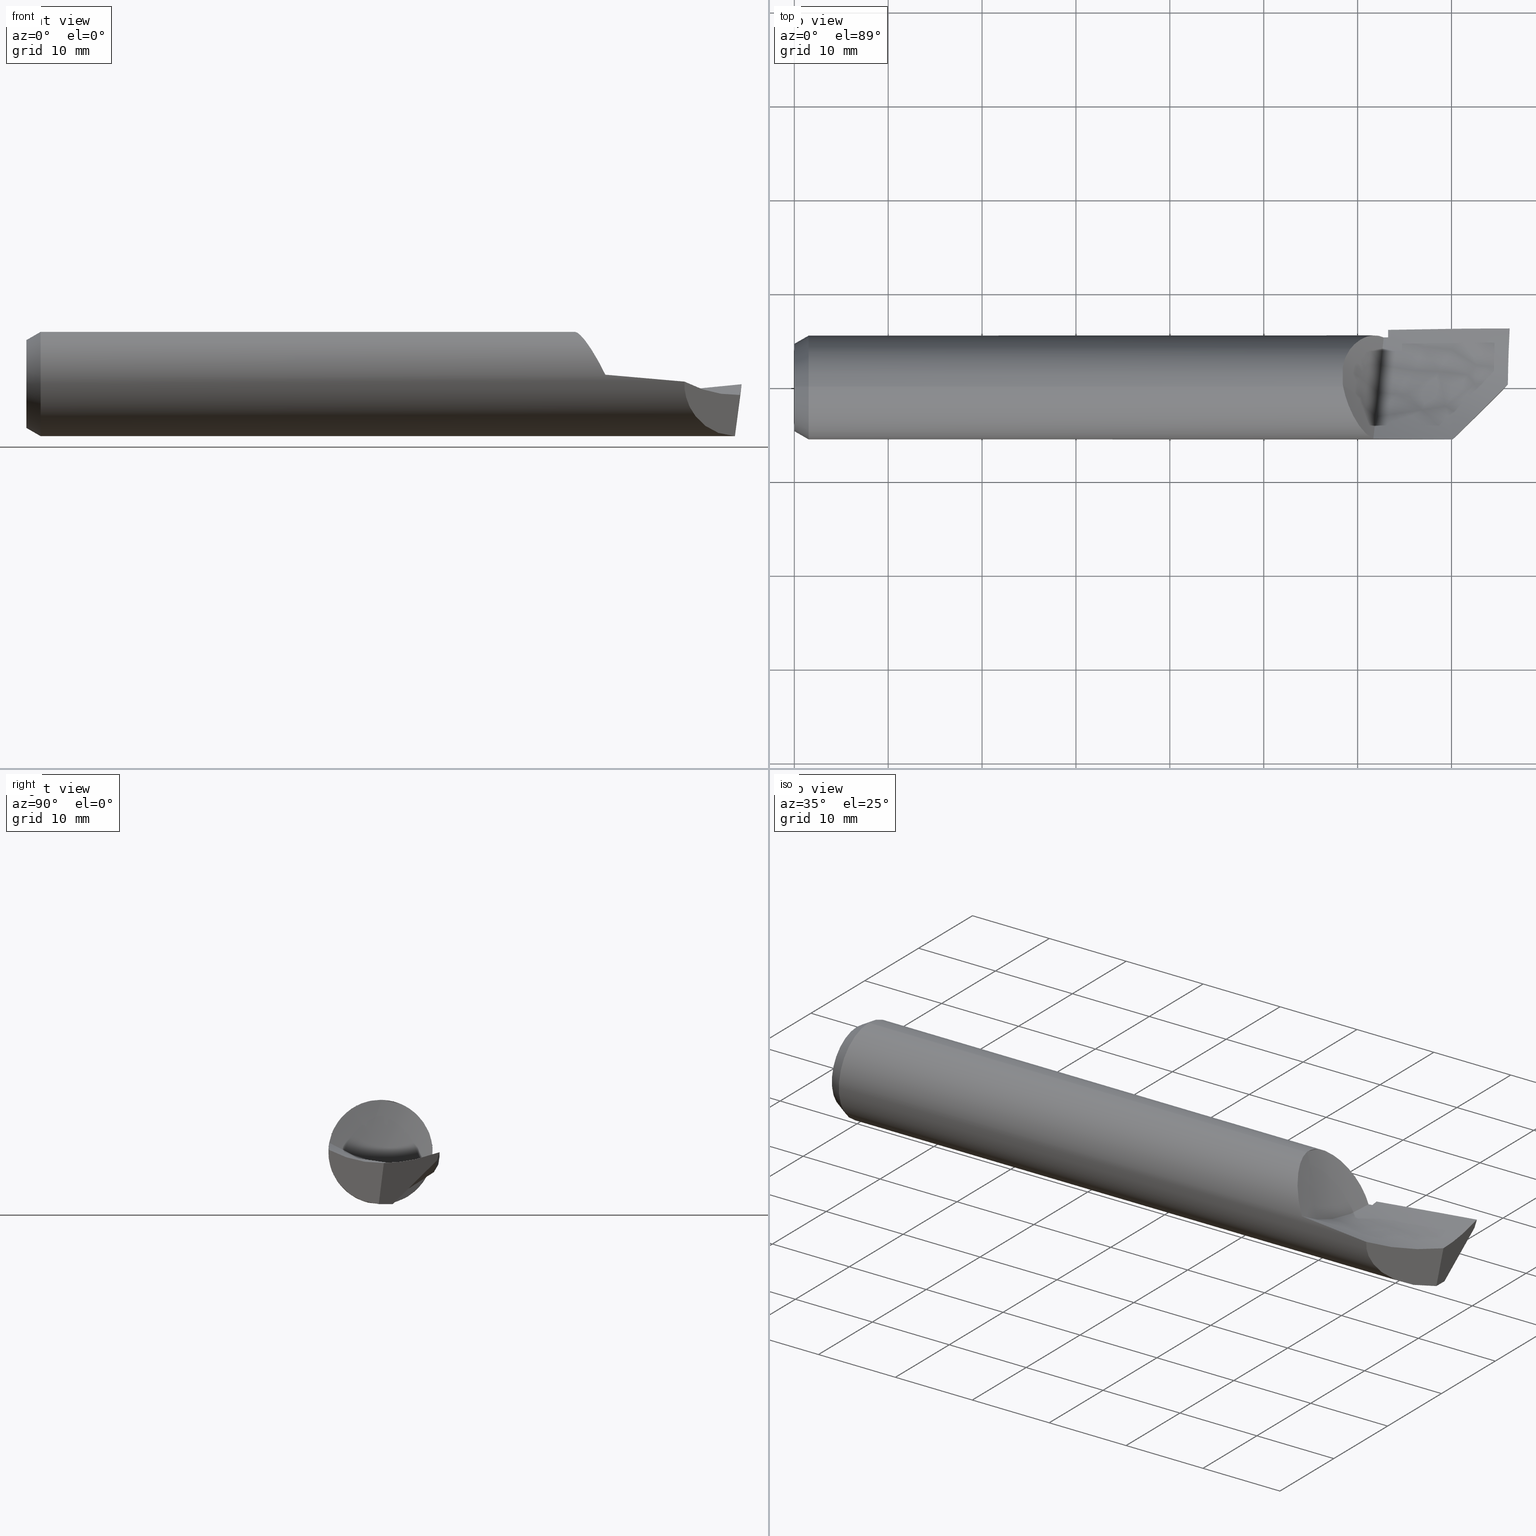
[diagram: canonical four-view strip — front | top / right | iso, engineering-drawing reading convention]
A machine part, canonical four-view strip (front | top / right | iso — engineering-drawing reading convention). The complete STEP part file that produces these views, byte-faithful:
ISO-10303-21;
HEADER;
FILE_DESCRIPTION (( 'STEP AP203' ),
    '1' );
FILE_NAME ('215778-HB480.STEP',
    '2024-08-09T22:11:51',
    ( '' ),
    ( '' ),
    'SwSTEP 2.0',
    'SolidWorks 2024',
    '' );
FILE_SCHEMA (( 'CONFIG_CONTROL_DESIGN' ));
ENDSEC;

DATA;
#1 = ORIENTED_EDGE ( 'NONE', *, *, #314, .T. ) ;
#2 = UNCERTAINTY_MEASURE_WITH_UNIT (LENGTH_MEASURE( 1.000000000000000082E-05 ), #379, 'distance_accuracy_value', 'NONE');
#3 = DIRECTION ( 'NONE',  ( 1.000000000000000000, 0.000000000000000000, 0.000000000000000000 ) ) ;
#4 = CARTESIAN_POINT ( 'NONE',  ( 2.453529265273477922, 0.02632038727176034057, -0.05321014791944891908 ) ) ;
#5 = VERTEX_POINT ( 'NONE', #477 ) ;
#6 = CARTESIAN_POINT ( 'NONE',  ( 2.375000000000001776, 0.2195062469289532914, -0.09505118791255254274 ) ) ;
#7 = CARTESIAN_POINT ( 'NONE',  ( 2.926130615619848552, 0.2477060359061865613, -0.008186851868489259873 ) ) ;
#8 = AXIS2_PLACEMENT_3D ( 'NONE', #275, #504, #166 ) ;
#9 = VERTEX_POINT ( 'NONE', #710 ) ;
#10 = CARTESIAN_POINT ( 'NONE',  ( 3.000000000000000444, 0.1068138953506696243, -0.07014347580852546560 ) ) ;
#11 = CARTESIAN_POINT ( 'NONE',  ( 2.397833416469516976, 0.2114095307937698398, 0.05580185651004447578 ) ) ;
#12 = ORIENTED_EDGE ( 'NONE', *, *, #672, .F. ) ;
#13 = CARTESIAN_POINT ( 'NONE',  ( 3.000000000000000444, -0.1068138953506696520, -0.07014347580852543784 ) ) ;
#14 = CARTESIAN_POINT ( 'NONE',  ( 2.952458880642425676, -0.02590525459746200604, -0.04690927801593595264 ) ) ;
#15 = VERTEX_POINT ( 'NONE', #84 ) ;
#16 = DIRECTION ( 'NONE',  ( 1.000000000000000000, 0.000000000000000000, -0.000000000000000000 ) ) ;
#17 = CARTESIAN_POINT ( 'NONE',  ( 2.809895244831540850, 0.2472116736001756243, -0.01975824981623042556 ) ) ;
#18 = ORIENTED_EDGE ( 'NONE', *, *, #180, .F. ) ;
#19 = CC_DESIGN_PERSON_AND_ORGANIZATION_ASSIGNMENT ( #489, #330, ( #146 ) ) ;
#20 = DIRECTION ( 'NONE',  ( -0.008726535498366258525, -0.9999619230641711987, 0.000000000000000000 ) ) ;
#21 = DIRECTION ( 'NONE',  ( 0.000000000000000000, 0.000000000000000000, 1.000000000000000000 ) ) ;
#22 = ORIENTED_EDGE ( 'NONE', *, *, #116, .T. ) ;
#23 = CARTESIAN_POINT ( 'NONE',  ( 0.000000000000000000, 0.000000000000000000, 0.000000000000000000 ) ) ;
#24 = EDGE_CURVE ( 'NONE', #172, #545, #693, .T. ) ;
#25 = CARTESIAN_POINT ( 'NONE',  ( 2.759944547215722022, -0.2184195880241632803, 0.01003524127037984555 ) ) ;
#26 = VERTEX_POINT ( 'NONE', #544 ) ;
#27 = CARTESIAN_POINT ( 'NONE',  ( 1.750000000000003109, 0.1874256952490743755, -0.1486247944483796157 ) ) ;
#28 = CARTESIAN_POINT ( 'NONE',  ( 2.300000000000000711, -0.09244828656994345806, 0.2677915732775292823 ) ) ;
#29 = CARTESIAN_POINT ( 'NONE',  ( 2.333018530376162136, -0.09912489433539911632, 0.1953142997923079105 ) ) ;
#30 = B_SPLINE_CURVE_WITH_KNOTS ( 'NONE', 3,
 ( #405, #529, #416, #184 ),
 .UNSPECIFIED., .F., .F.,
 ( 4, 4 ),
 ( 6.281806324945532255E-05, 0.006714991020779010472 ),
 .UNSPECIFIED. ) ;
#31 = CARTESIAN_POINT ( 'NONE',  ( 0.05999999999999999778, 0.000000000000000000, -0.2186499999999999555 ) ) ;
#32 = CARTESIAN_POINT ( 'NONE',  ( 2.404165058258995735, -0.2022209992731614780, 0.08673448802873333363 ) ) ;
#33 = CYLINDRICAL_SURFACE ( 'NONE', #42, 0.2186499999999999555 ) ;
#34 = B_SPLINE_CURVE_WITH_KNOTS ( 'NONE', 3,
 ( #559, #496, #345, #736 ),
 .UNSPECIFIED., .F., .F.,
 ( 4, 4 ),
 ( 0.0003823762464701765972, 0.01264710855387443829 ),
 .UNSPECIFIED. ) ;
#35 = SECURITY_CLASSIFICATION_LEVEL ( 'unclassified' ) ;
#36 = CARTESIAN_POINT ( 'NONE',  ( 2.323214188873262032, -0.07528118465658968639, 0.2052819717783619657 ) ) ;
#37 = LINE ( 'NONE', #31, #338 ) ;
#38 =( BOUNDED_CURVE ( )  B_SPLINE_CURVE ( 2, ( #173, #64, #438 ),
 .UNSPECIFIED., .F., .T. ) 
 B_SPLINE_CURVE_WITH_KNOTS ( ( 3, 3 ),
 ( 0.4075927071583006489, 0.4196108242066911576 ),
 .UNSPECIFIED. ) 
 CURVE ( )  GEOMETRIC_REPRESENTATION_ITEM ( )  RATIONAL_B_SPLINE_CURVE ( ( 0.9974221972044268192, 0.9975518224474401174, 0.9976913329914361972 ) ) 
 REPRESENTATION_ITEM ( '' )  );
#39 = CARTESIAN_POINT ( 'NONE',  ( 2.363905207600466962, 0.1924089063709990555, 0.1039229917590402119 ) ) ;
#40 = DIRECTION ( 'NONE',  ( 0.000000000000000000, -0.2181432413965430084, -0.9759167619387472126 ) ) ;
#41 = PLANE ( 'NONE',  #324 ) ;
#42 = AXIS2_PLACEMENT_3D ( 'NONE', #257, #140, #307 ) ;
#43 = EDGE_CURVE ( 'NONE', #9, #185, #615, .T. ) ;
#44 = ORGANIZATION ( 'UNSPECIFIED', 'UNSPECIFIED', '' ) ;
#45 = PERSON_AND_ORGANIZATION ( #497, #44 ) ;
#46 = VERTEX_POINT ( 'NONE', #276 ) ;
#47 = COORDINATED_UNIVERSAL_TIME_OFFSET ( 8, 0, .BEHIND. ) ;
#48 = FACE_OUTER_BOUND ( 'NONE', #501, .T. ) ;
#49 = FACE_OUTER_BOUND ( 'NONE', #256, .T. ) ;
#50 = CC_DESIGN_DATE_AND_TIME_ASSIGNMENT ( #588, #605, ( #430 ) ) ;
#51 = CARTESIAN_POINT ( 'NONE',  ( 2.328047902314449136, 0.1546146149302987938, 0.1546032736966543308 ) ) ;
#52 = ADVANCED_FACE ( 'NONE', ( #49 ), #563, .T. ) ;
#53 = ORIENTED_EDGE ( 'NONE', *, *, #116, .F. ) ;
#54 = CARTESIAN_POINT ( 'NONE',  ( 2.489999999999999769, 0.1918135994642089504, -0.1049541116906446275 ) ) ;
#55 = CIRCLE ( 'NONE', #308, 0.1840089838486222984 ) ;
#56 = LOCAL_TIME ( 15, 11, 51.00000000000000000, #47 ) ;
#57 = CARTESIAN_POINT ( 'NONE',  ( 2.326556738207085306, 0.1524046853324498574, 0.1567870027476327421 ) ) ;
#58 = ORIENTED_EDGE ( 'NONE', *, *, #453, .F. ) ;
#59 = CARTESIAN_POINT ( 'NONE',  ( 2.421570427800182834, 0.2176470342228374322, 0.02093183762544963827 ) ) ;
#60 = VERTEX_POINT ( 'NONE', #260 ) ;
#61 = DIRECTION ( 'NONE',  ( 1.000000000000000000, -0.000000000000000000, -0.000000000000000000 ) ) ;
#62 = CARTESIAN_POINT ( 'NONE',  ( 2.397994206653932814, 0.2114706548956105103, 0.05556976712593909851 ) ) ;
#63 = VERTEX_POINT ( 'NONE', #724 ) ;
#64 = CARTESIAN_POINT ( 'NONE',  ( 2.482495906476935410, 0.01541270954320094443, -0.2181071841326581162 ) ) ;
#65 = ADVANCED_FACE ( 'NONE', ( #384 ), #387, .F. ) ;
#66 = CARTESIAN_POINT ( 'NONE',  ( 2.388474757434112306, 0.2074262837235378298, 0.06924111559165470331 ) ) ;
#67 = AXIS2_PLACEMENT_3D ( 'NONE', #154, #102, #548 ) ;
#68 = ORIENTED_EDGE ( 'NONE', *, *, #450, .F. ) ;
#69 = FACE_OUTER_BOUND ( 'NONE', #646, .T. ) ;
#70 = ADVANCED_BREP_SHAPE_REPRESENTATION ( '215778-HB480', ( #683, #82 ), #229 ) ;
#71 = ADVANCED_FACE ( 'NONE', ( #732 ), #479, .T. ) ;
#72 = CARTESIAN_POINT ( 'NONE',  ( 2.464212849416284268, 0.1377136875928078319, -0.06237143978746857720 ) ) ;
#73 = EDGE_LOOP ( 'NONE', ( #227, #520, #555, #313 ) ) ;
#74 = CARTESIAN_POINT ( 'NONE',  ( 2.675925925925927373, -0.1160484591303231200, -0.05608115970857106142 ) ) ;
#75 = CARTESIAN_POINT ( 'NONE',  ( 2.423203999389649699, 0.2178669501258466701, 0.01848827045659664006 ) ) ;
#76 = APPROVAL ( #723, 'UNSPECIFIED' ) ;
#77 = ORIENTED_EDGE ( 'NONE', *, *, #672, .T. ) ;
#78 = EDGE_CURVE ( 'NONE', #372, #99, #162, .T. ) ;
#79 = LINE ( 'NONE', #692, #362 ) ;
#80 = CARTESIAN_POINT ( 'NONE',  ( 2.992943527074801047, 0.05368886949584446289, -0.04447926573626161117 ) ) ;
#81 = ORIENTED_EDGE ( 'NONE', *, *, #105, .F. ) ;
#82 = AXIS2_PLACEMENT_3D ( 'NONE', #273, #160, #326 ) ;
#83 = CARTESIAN_POINT ( 'NONE',  ( 3.000000000000000444, 0.2477392110322483021, -0.0008026259127264761661 ) ) ;
#84 = CARTESIAN_POINT ( 'NONE',  ( 0.000000000000000000, 2.465575178590705122E-17, 0.1840089838486222984 ) ) ;
#85 = CARTESIAN_POINT ( 'NONE',  ( 2.971045210168150152, -0.004983436051679127933, -0.2186499999999999277 ) ) ;
#86 = EDGE_CURVE ( 'NONE', #280, #290, #319, .T. ) ;
#87 = EDGE_CURVE ( 'NONE', #545, #702, #222, .T. ) ;
#88 = FACE_OUTER_BOUND ( 'NONE', #734, .T. ) ;
#89 = CARTESIAN_POINT ( 'NONE',  ( 2.355320374578511622, -0.1416402864811723283, 0.1665775413964809271 ) ) ;
#90 = CARTESIAN_POINT ( 'NONE',  ( 2.489999999999999325, 0.2423699690041354604, -0.05254329762143241517 ) ) ;
#91 = CARTESIAN_POINT ( 'NONE',  ( 2.352574804815551701, -0.1369811847766351232, 0.1704269595549112171 ) ) ;
#92 = CARTESIAN_POINT ( 'NONE',  ( 2.649779223677496187, 0.2458885538007191673, -0.03631288714680367541 ) ) ;
#93 = CARTESIAN_POINT ( 'NONE',  ( 2.343951596291697470, -0.1213797972024620586, 0.1819929034652300326 ) ) ;
#94 = CARTESIAN_POINT ( 'NONE',  ( 2.474998967115994652, 0.1911388645456205126, -0.1061779492325103103 ) ) ;
#95 = CARTESIAN_POINT ( 'NONE',  ( 2.375000000000001776, 0.2195062469289533191, -0.09505118791255254274 ) ) ;
#96 = EDGE_CURVE ( 'NONE', #484, #524, #707, .T. ) ;
#97 = CARTESIAN_POINT ( 'NONE',  ( 2.489999999999999769, 0.2114691027157989678, -0.05557554405431827660 ) ) ;
#98 = CARTESIAN_POINT ( 'NONE',  ( 2.315200195965978924, 0.1325952822649140439, 0.1740109497427286545 ) ) ;
#99 = VERTEX_POINT ( 'NONE', #466 ) ;
#100 = CARTESIAN_POINT ( 'NONE',  ( 2.475000000000000089, 0.2724528542694114042, -0.009666550597336147008 ) ) ;
#101 = EDGE_CURVE ( 'NONE', #5, #662, #423, .T. ) ;
#102 = DIRECTION ( 'NONE',  ( -0.7071067811865457964, 0.7071067811865492381, 0.000000000000000000 ) ) ;
#103 = CALENDAR_DATE ( 2024, 9, 8 ) ;
#104 = FACE_OUTER_BOUND ( 'NONE', #115, .T. ) ;
#105 = EDGE_CURVE ( 'NONE', #404, #729, #328, .T. ) ;
#106 = DIRECTION ( 'NONE',  ( -1.000000000000000000, -0.000000000000000000, -0.000000000000000000 ) ) ;
#107 = APPROVAL_ROLE ( '' ) ;
#108 = CARTESIAN_POINT ( 'NONE',  ( 2.428289023255804313, -0.2151305318689206991, 0.03907271116515032006 ) ) ;
#109 = CARTESIAN_POINT ( 'NONE',  ( 2.971088699955716450, 0.000000000000000000, -0.2186499999999999277 ) ) ;
#110 = EDGE_LOOP ( 'NONE', ( #388, #183, #620, #12, #178, #634 ) ) ;
#111 = APPROVAL_DATE_TIME ( #437, #359 ) ;
#112 = DIRECTION ( 'NONE',  ( 1.000000000000000000, 0.000000000000000000, 0.000000000000000000 ) ) ;
#113 = DIRECTION ( 'NONE',  ( -1.000000000000000000, 0.000000000000000000, 0.000000000000000000 ) ) ;
#114 = EDGE_CURVE ( 'NONE', #517, #484, #297, .T. ) ;
#115 = EDGE_LOOP ( 'NONE', ( #641, #299, #303, #549, #53, #391, #574, #168 ) ) ;
#116 = EDGE_CURVE ( 'NONE', #372, #411, #342, .T. ) ;
#117 = CARTESIAN_POINT ( 'NONE',  ( 2.489999999999999769, 0.01517653587899060220, -0.2186499999999646504 ) ) ;
#118 = CARTESIAN_POINT ( 'NONE',  ( 2.471346566983472215, 0.2110442653468279639, -0.05716765312847496561 ) ) ;
#119 = ORIENTED_EDGE ( 'NONE', *, *, #96, .T. ) ;
#120 = DIRECTION ( 'NONE',  ( 0.000000000000000000, 0.000000000000000000, 1.000000000000000000 ) ) ;
#121 = CARTESIAN_POINT ( 'NONE',  ( 2.397033353014935475, 0.2111023645173862595, 0.05695621974847775437 ) ) ;
#122 = ORIENTED_EDGE ( 'NONE', *, *, #96, .F. ) ;
#123 = CARTESIAN_POINT ( 'NONE',  ( 2.596629930743082237, 0.2448327961100067174, -0.04093195773288563905 ) ) ;
#124 = EDGE_CURVE ( 'NONE', #524, #172, #288, .T. ) ;
#125 = CARTESIAN_POINT ( 'NONE',  ( 2.391960524979533709, 0.2090039576888228501, 0.06425115845136457338 ) ) ;
#126 = ORIENTED_EDGE ( 'NONE', *, *, #443, .F. ) ;
#127 = CARTESIAN_POINT ( 'NONE',  ( 2.687500000000001332, 0.2480000000000000260, -0.03264981940167418356 ) ) ;
#128 = CARTESIAN_POINT ( 'NONE',  ( 2.467775382269693285, 0.1747646242851797760, -0.06124491988081878086 ) ) ;
#129 = EDGE_CURVE ( 'NONE', #46, #482, #393, .T. ) ;
#130 = VERTEX_POINT ( 'NONE', #645 ) ;
#131 = PLANE ( 'NONE',  #604 ) ;
#132 = CARTESIAN_POINT ( 'NONE',  ( 0.000000000000000000, 0.000000000000000000, 0.000000000000000000 ) ) ;
#133 = EDGE_LOOP ( 'NONE', ( #18, #234, #506, #433 ) ) ;
#134 = FACE_OUTER_BOUND ( 'NONE', #681, .T. ) ;
#135 = CARTESIAN_POINT ( 'NONE',  ( 2.995650168487128173, 0.2365632825314395171, -0.03543351693485011222 ) ) ;
#136 = CARTESIAN_POINT ( 'NONE',  ( 2.301726246469366188, -1.097537071093359530E-06, 0.2186592195482873757 ) ) ;
#137 = CARTESIAN_POINT ( 'NONE',  ( 1.703703703703706607, -0.1275752847551152036, -0.007339084284587429202 ) ) ;
#138 = CARTESIAN_POINT ( 'NONE',  ( 2.999274707140291429, 0.2458870927091102165, -0.006577803681580489219 ) ) ;
#139 = CARTESIAN_POINT ( 'NONE',  ( 2.361462074103669373, -0.1518093568957322725, 0.1578105731485001939 ) ) ;
#140 = DIRECTION ( 'NONE',  ( -1.000000000000000000, -0.000000000000000000, -0.000000000000000000 ) ) ;
#141 = ORIENTED_EDGE ( 'NONE', *, *, #593, .T. ) ;
#142 =( NAMED_UNIT ( * ) PLANE_ANGLE_UNIT ( ) SI_UNIT ( $, .RADIAN. ) );
#143 = PERSON_AND_ORGANIZATION_ROLE ( 'design_supplier' ) ;
#144 = ORIENTED_EDGE ( 'NONE', *, *, #464, .F. ) ;
#145 = AXIS2_PLACEMENT_3D ( 'NONE', #100, #542, #40 ) ;
#146 = PRODUCT_DEFINITION ( 'UNKNOWN', '', #240, #315 ) ;
#147 = CARTESIAN_POINT ( 'NONE',  ( 2.388684362219429147, -0.1868110008452404935, 0.1136655096938769816 ) ) ;
#148 = CARTESIAN_POINT ( 'NONE',  ( 2.809895244831540850, 0.2472116736001756243, -0.01975824981623042556 ) ) ;
#149 = CARTESIAN_POINT ( 'NONE',  ( 2.992624683810753083, 0.03385053414722247189, -0.04566598811201510316 ) ) ;
#150 = CARTESIAN_POINT ( 'NONE',  ( 2.367367877305577739, 0.1949327976827348041, 0.09905738301277858260 ) ) ;
#151 = ORIENTED_EDGE ( 'NONE', *, *, #24, .F. ) ;
#152 = LENGTH_MEASURE_WITH_UNIT ( LENGTH_MEASURE( 0.02539999999999999897 ), #206 );
#153 = FACE_OUTER_BOUND ( 'NONE', #513, .T. ) ;
#154 = CARTESIAN_POINT ( 'NONE',  ( 2.745857864376267887, -0.2325062708636176367, -0.2500000000000000555 ) ) ;
#155 = ADVANCED_FACE ( 'NONE', ( #153 ), #591, .T. ) ;
#156 = DATE_AND_TIME ( #667, #458 ) ;
#157 = EDGE_CURVE ( 'NONE', #185, #482, #371, .T. ) ;
#158 = CARTESIAN_POINT ( 'NONE',  ( 2.759944547215722022, -0.2184195880241632803, 0.01003524127037984555 ) ) ;
#159 = AXIS2_PLACEMENT_3D ( 'NONE', #624, #3, #386 ) ;
#160 = DIRECTION ( 'NONE',  ( 0.000000000000000000, 0.000000000000000000, 1.000000000000000000 ) ) ;
#161 = CARTESIAN_POINT ( 'NONE',  ( 2.489999999999999325, 0.2423699690041354604, -0.05254329762143241517 ) ) ;
#162 =( BOUNDED_CURVE ( )  B_SPLINE_CURVE ( 2, ( #94, #505, #610 ),
 .UNSPECIFIED., .F., .T. ) 
 B_SPLINE_CURVE_WITH_KNOTS ( ( 3, 3 ),
 ( 0.5803891757933095086, 0.5924072928417014605 ),
 .UNSPECIFIED. ) 
 CURVE ( )  GEOMETRIC_REPRESENTATION_ITEM ( )  RATIONAL_B_SPLINE_CURVE ( ( 0.9976913329914360862, 0.9975518224474400064, 0.9974221972044267082 ) ) 
 REPRESENTATION_ITEM ( '' )  );
#163 = CARTESIAN_POINT ( 'NONE',  ( 1.750000000000003109, 0.2147743001385408190, -0.1240000000000000130 ) ) ;
#164 = ORIENTED_EDGE ( 'NONE', *, *, #86, .F. ) ;
#165 = APPROVAL_STATUS ( 'not_yet_approved' ) ;
#166 = DIRECTION ( 'NONE',  ( 0.000000000000000000, 0.000000000000000000, 1.000000000000000000 ) ) ;
#167 = CARTESIAN_POINT ( 'NONE',  ( 2.355166375661937650, 0.1853570673493268317, 0.1161901871610523107 ) ) ;
#168 = ORIENTED_EDGE ( 'NONE', *, *, #733, .F. ) ;
#169 = CARTESIAN_POINT ( 'NONE',  ( 2.489999999999967351, 0.2426219749193215536, -0.05138085314958797112 ) ) ;
#170 = CARTESIAN_POINT ( 'NONE',  ( 2.432181049313780097, -0.1841263147728423033, 0.01977626706365440482 ) ) ;
#171 = ADVANCED_FACE ( 'NONE', ( #603 ), #366, .F. ) ;
#172 = VERTEX_POINT ( 'NONE', #636 ) ;
#173 = CARTESIAN_POINT ( 'NONE',  ( 2.489999999999999769, 0.01609851000112816344, -0.2180565533886646701 ) ) ;
#174 = CARTESIAN_POINT ( 'NONE',  ( 2.433059707276096884, 0.2191156137562938755, 0.003690420362174034932 ) ) ;
#175 = ORIENTED_EDGE ( 'NONE', *, *, #503, .F. ) ;
#176 = CARTESIAN_POINT ( 'NONE',  ( 1.703703703703706607, 0.05743180894658971719, -0.1141529796352570847 ) ) ;
#177 = DIRECTION ( 'NONE',  ( 0.000000000000000000, 0.000000000000000000, 1.000000000000000000 ) ) ;
#178 = ORIENTED_EDGE ( 'NONE', *, *, #43, .F. ) ;
#179 = LINE ( 'NONE', #85, #370 ) ;
#180 = EDGE_CURVE ( 'NONE', #15, #63, #721, .T. ) ;
#181 = CARTESIAN_POINT ( 'NONE',  ( 2.423233938071986504, 0.2178707556036081072, 0.01844333415305262486 ) ) ;
#182 = APPROVAL_PERSON_ORGANIZATION ( #675, #359, #107 ) ;
#183 = ORIENTED_EDGE ( 'NONE', *, *, #251, .T. ) ;
#184 = CARTESIAN_POINT ( 'NONE',  ( 2.995650168487128173, 0.2365632825314395171, -0.03543351693485011222 ) ) ;
#185 = VERTEX_POINT ( 'NONE', #435 ) ;
#186 =( BOUNDED_CURVE ( )  B_SPLINE_CURVE ( 1, ( #117, #452 ),
 .UNSPECIFIED., .F., .T. ) 
 B_SPLINE_CURVE_WITH_KNOTS ( ( 2, 2 ),
 ( 0.001548922772798105125, 0.001576772748276457229 ),
 .UNSPECIFIED. ) 
 CURVE ( )  GEOMETRIC_REPRESENTATION_ITEM ( )  RATIONAL_B_SPLINE_CURVE ( ( 0.9974221972044268192, 0.9974221972044268192 ) ) 
 REPRESENTATION_ITEM ( '' )  );
#187 = CARTESIAN_POINT ( 'NONE',  ( 2.027777777777780344, 0.2876624987053781890, -0.09582829018325357551 ) ) ;
#188 = CARTESIAN_POINT ( 'NONE',  ( 2.994331206119607902, 0.1133106296732912799, -0.03741539065945204828 ) ) ;
#189 = CARTESIAN_POINT ( 'NONE',  ( 2.306805682398024526, -0.02460528017656646999, 0.2176696562880552077 ) ) ;
#190 = CARTESIAN_POINT ( 'NONE',  ( 0.05999999999999999778, 2.677690226335687467E-17, 0.2186499999999999555 ) ) ;
#191 = B_SPLINE_CURVE_WITH_KNOTS ( 'NONE', 3,
 ( #358, #322, #305, #188, #327, #80, #149, #731 ),
 .UNSPECIFIED., .F., .F.,
 ( 4, 2, 2, 4 ),
 ( 7.173462370684666684E-18, 0.003035248955598827438, 0.004552873433398237253, 0.006070497911197647069 ),
 .UNSPECIFIED. ) ;
#192 = DIRECTION ( 'NONE',  ( 1.000000000000000000, 0.000000000000000000, 0.000000000000000000 ) ) ;
#193 = ORIENTED_EDGE ( 'NONE', *, *, #722, .F. ) ;
#194 = CIRCLE ( 'NONE', #8, 0.2186499999999999555 ) ;
#195 = CARTESIAN_POINT ( 'NONE',  ( 2.301661883401521003, 0.0003876334332872562465, 0.2186500005415279446 ) ) ;
#196 = CARTESIAN_POINT ( 'NONE',  ( 2.300000000000000266, 0.1070336980627114992, 0.1859076371132538930 ) ) ;
#197 = CARTESIAN_POINT ( 'NONE',  ( 2.416417109839361199, -0.2107593895042231824, 0.06321933073818106208 ) ) ;
#198 = EDGE_CURVE ( 'NONE', #404, #46, #191, .T. ) ;
#199 = CARTESIAN_POINT ( 'NONE',  ( 2.300000000000000711, 0.03468547719500413712, 0.2107352011881281073 ) ) ;
#200 = CALENDAR_DATE ( 2024, 9, 8 ) ;
#201 = CARTESIAN_POINT ( 'NONE',  ( 2.323851703196345930, -0.07692295761513165409, 0.2046733460412995254 ) ) ;
#202 = CARTESIAN_POINT ( 'NONE',  ( 2.300264159778933504, 0.008933953364419744067, 0.2184745173646372718 ) ) ;
#203 = EDGE_CURVE ( 'NONE', #130, #524, #701, .T. ) ;
#204 = CARTESIAN_POINT ( 'NONE',  ( 2.379225412555462160, -0.1761750767513639848, 0.1296564606167888434 ) ) ;
#205 = AXIS2_PLACEMENT_3D ( 'NONE', #625, #113, #177 ) ;
#206 =( LENGTH_UNIT ( ) NAMED_UNIT ( * ) SI_UNIT ( $, .METRE. ) );
#207 = CC_DESIGN_APPROVAL ( #359, ( #146 ) ) ;
#208 = CARTESIAN_POINT ( 'NONE',  ( 0.05999999999999999778, 0.000000000000000000, 0.000000000000000000 ) ) ;
#209 = ORIENTED_EDGE ( 'NONE', *, *, #722, .T. ) ;
#210 = DIRECTION ( 'NONE',  ( 0.1218739150664907706, 0.000000000000000000, 0.9925455903012041503 ) ) ;
#211 = CALENDAR_DATE ( 2024, 9, 8 ) ;
#212 = CARTESIAN_POINT ( 'NONE',  ( 2.062500000000002665, 0.2503984894702602215, -0.04913184434026930669 ) ) ;
#213 = ADVANCED_FACE ( 'NONE', ( #480 ), #41, .F. ) ;
#214 = COORDINATED_UNIVERSAL_TIME_OFFSET ( 8, 0, .BEHIND. ) ;
#215 = CARTESIAN_POINT ( 'NONE',  ( 2.062500000000002665, -0.1025015563926100354, -0.2521463777385072325 ) ) ;
#216 = CARTESIAN_POINT ( 'NONE',  ( 2.312534214554919476, 0.1267698187323545722, 0.1782919693017153973 ) ) ;
#217 = CC_DESIGN_PERSON_AND_ORGANIZATION_ASSIGNMENT ( #45, #143, ( #240 ) ) ;
#218 = EDGE_LOOP ( 'NONE', ( #141, #337 ) ) ;
#219 = DATE_AND_TIME ( #494, #395 ) ;
#220 = ADVANCED_FACE ( 'NONE', ( #88 ), #302, .F. ) ;
#221 = CARTESIAN_POINT ( 'NONE',  ( 2.687500000000001332, -0.03374861584210742810, -0.2700840532099205715 ) ) ;
#222 = LINE ( 'NONE', #741, #526 ) ;
#223 = PLANE ( 'NONE',  #159 ) ;
#224 = CARTESIAN_POINT ( 'NONE',  ( 2.327677241066233194, 0.1540711808845480757, 0.1551449276955550460 ) ) ;
#225 = ORIENTED_EDGE ( 'NONE', *, *, #24, .T. ) ;
#226 = CARTESIAN_POINT ( 'NONE',  ( 2.410943118938231766, 0.2156394942512017132, 0.03669571857653452368 ) ) ;
#227 = ORIENTED_EDGE ( 'NONE', *, *, #346, .T. ) ;
#228 = CARTESIAN_POINT ( 'NONE',  ( 2.441971794761839121, -0.09345213243011307735, -0.04411038998481184303 ) ) ;
#229 =( GEOMETRIC_REPRESENTATION_CONTEXT ( 3 ) GLOBAL_UNCERTAINTY_ASSIGNED_CONTEXT ( ( #2 ) ) GLOBAL_UNIT_ASSIGNED_CONTEXT ( ( #379, #142, #431 ) ) REPRESENTATION_CONTEXT ( 'NONE', 'WORKASPACE' ) );
#230 = CARTESIAN_POINT ( 'NONE',  ( 2.992409909881779573, 0.01404577464189131833, -0.04600755233719699966 ) ) ;
#231 = ORIENTED_EDGE ( 'NONE', *, *, #157, .F. ) ;
#232 = CARTESIAN_POINT ( 'NONE',  ( 2.675925925925927373, -0.2970371766865925189, 0.06084151565276457729 ) ) ;
#233 = CARTESIAN_POINT ( 'NONE',  ( 2.422981224190761118, 0.2178384048208437118, 0.01882239950287337843 ) ) ;
#234 = ORIENTED_EDGE ( 'NONE', *, *, #503, .T. ) ;
#235 = CARTESIAN_POINT ( 'NONE',  ( 1.703703703703706829, 0.2703604744503558810, -0.1314219218935561984 ) ) ;
#236 = CARTESIAN_POINT ( 'NONE',  ( 2.913117357248658390, -0.06524677799122817479, -0.04263809646310495055 ) ) ;
#237 = ORIENTED_EDGE ( 'NONE', *, *, #295, .F. ) ;
#238 = DIRECTION ( 'NONE',  ( 0.000000000000000000, 0.000000000000000000, 1.000000000000000000 ) ) ;
#239 = CARTESIAN_POINT ( 'NONE',  ( 2.418947809790076509, 0.2172440735159782976, 0.02483878854210490317 ) ) ;
#240 = PRODUCT_DEFINITION_FORMATION_WITH_SPECIFIED_SOURCE ( 'ANY', '', #698, .NOT_KNOWN. ) ;
#241 = ORIENTED_EDGE ( 'NONE', *, *, #251, .F. ) ;
#242 = CARTESIAN_POINT ( 'NONE',  ( 2.301726246469366188, -1.097537071093359530E-06, 0.2186592195482873757 ) ) ;
#243 = ADVANCED_FACE ( 'NONE', ( #48 ), #712, .F. ) ;
#244 = DIRECTION ( 'NONE',  ( 0.000000000000000000, 0.000000000000000000, -1.000000000000000000 ) ) ;
#245 = CARTESIAN_POINT ( 'NONE',  ( 2.367185262199309026, -0.1604174294540414158, 0.1490964670851037677 ) ) ;
#246 = CARTESIAN_POINT ( 'NONE',  ( 2.027777777777780344, -0.1266090759790448605, -0.02413468915302155807 ) ) ;
#247 = CARTESIAN_POINT ( 'NONE',  ( 2.489999999999999769, 0.2186499999999999555, 0.000000000000000000 ) ) ;
#248 = ORIENTED_EDGE ( 'NONE', *, *, #114, .T. ) ;
#249 = CARTESIAN_POINT ( 'NONE',  ( 2.300000000000000711, 0.01069301138062624286, 0.2183883742501275815 ) ) ;
#250 = DIRECTION ( 'NONE',  ( -1.000000000000000000, -0.000000000000000000, -0.000000000000000000 ) ) ;
#251 = EDGE_CURVE ( 'NONE', #534, #404, #584, .T. ) ;
#252 = CARTESIAN_POINT ( 'NONE',  ( 2.323595237030361194, -0.07626520320020195587, 0.2049193257915879196 ) ) ;
#253 = VECTOR ( 'NONE', #540, 39.37007874015748854 ) ;
#254 = CARTESIAN_POINT ( 'NONE',  ( 2.300668130135382405, 0.006275985951871166507, 0.2185726620587439550 ) ) ;
#255 = PERSON_AND_ORGANIZATION ( #497, #44 ) ;
#256 = EDGE_LOOP ( 'NONE', ( #666, #623, #695 ) ) ;
#257 = CARTESIAN_POINT ( 'NONE',  ( 0.000000000000000000, 0.000000000000000000, 0.000000000000000000 ) ) ;
#258 = CARTESIAN_POINT ( 'NONE',  ( 2.353176744031411971, -0.1380131013251680028, 0.1695889247472538719 ) ) ;
#259 = CARTESIAN_POINT ( 'NONE',  ( 2.301571563392668995, 0.0009007926053188890659, 0.2186486067439287750 ) ) ;
#260 = CARTESIAN_POINT ( 'NONE',  ( 2.489999999999999769, 0.01609851000112816344, -0.2180565533886646701 ) ) ;
#261 = CIRCLE ( 'NONE', #680, 0.2186499999999999555 ) ;
#262 = DIRECTION ( 'NONE',  ( 0.000000000000000000, 0.000000000000000000, 1.000000000000000000 ) ) ;
#263 = CARTESIAN_POINT ( 'NONE',  ( 2.759944547215722022, -0.2184195880241632803, 0.01003524127037984555 ) ) ;
#264 =( BOUNDED_SURFACE ( )  B_SPLINE_SURFACE ( 1, 2, ( 
 ( #389, #550, #6, #621, #269 ),
 ( #283, #221, #682, #215, #668 ) ),
 .UNSPECIFIED., .F., .F., .F. ) 
 B_SPLINE_SURFACE_WITH_KNOTS ( ( 2, 2 ),
 ( 3, 2, 3 ),
 ( 0.000000000000000000, 1.000000000000000000 ),
 ( 0.000000000000000000, 0.5000000000000000000, 1.000000000000000000 ),
 .UNSPECIFIED. ) 
 GEOMETRIC_REPRESENTATION_ITEM ( )  RATIONAL_B_SPLINE_SURFACE ( (
 ( 1.000000000000000000, 0.9914448613738103822, 1.000000000000000000, 0.9914448613738103822, 1.000000000000000000),
 ( 1.000000000000000000, 0.9914448613738103822, 1.000000000000000000, 0.9914448613738103822, 1.000000000000000000) ) ) 
 REPRESENTATION_ITEM ( '' )  SURFACE ( )  );
#265 = CARTESIAN_POINT ( 'NONE',  ( 2.351115144369523069, 0.1816527304700217560, 0.1218706312577468032 ) ) ;
#266 = DIRECTION ( 'NONE',  ( 1.000000000000000000, 0.000000000000000000, 0.000000000000000000 ) ) ;
#267 = CARTESIAN_POINT ( 'NONE',  ( 3.000000000000000444, 0.2480000000000000260, -1.707404996040164512E-17 ) ) ;
#268 = COORDINATED_UNIVERSAL_TIME_OFFSET ( 8, 0, .BEHIND. ) ;
#269 = CARTESIAN_POINT ( 'NONE',  ( 1.750000000000003109, 0.1874256952490743477, -0.1486247944483796435 ) ) ;
#270 = PRODUCT_DEFINITION_SHAPE ( 'NONE', 'NONE',  #146 ) ;
#271 = CARTESIAN_POINT ( 'NONE',  ( 2.339809942963884559, 0.1702993353926188502, 0.1377509704733023699 ) ) ;
#272 = ORIENTED_EDGE ( 'NONE', *, *, #301, .T. ) ;
#273 = CARTESIAN_POINT ( 'NONE',  ( 0.000000000000000000, 0.000000000000000000, 0.000000000000000000 ) ) ;
#274 = AXIS2_PLACEMENT_3D ( 'NONE', #473, #546, #244 ) ;
#275 = CARTESIAN_POINT ( 'NONE',  ( 2.489999999999999769, 0.000000000000000000, 0.000000000000000000 ) ) ;
#276 = CARTESIAN_POINT ( 'NONE',  ( 2.992409909881779573, 0.01404577464189131833, -0.04600755233719699966 ) ) ;
#277 = CC_DESIGN_PERSON_AND_ORGANIZATION_ASSIGNMENT ( #447, #442, ( #698 ) ) ;
#278 = DIRECTION ( 'NONE',  ( -1.000000000000000000, -0.000000000000000000, -0.000000000000000000 ) ) ;
#279 = CARTESIAN_POINT ( 'NONE',  ( 2.376457864700647793, 0.2009676489907394059, 0.08627223400867724268 ) ) ;
#280 = VERTEX_POINT ( 'NONE', #533 ) ;
#281 = CARTESIAN_POINT ( 'NONE',  ( 2.423253717541535845, 0.2178732670025563534, 0.01841364297473834649 ) ) ;
#282 = ORIENTED_EDGE ( 'NONE', *, *, #314, .F. ) ;
#283 = CARTESIAN_POINT ( 'NONE',  ( 3.000000000000000444, 0.001777810631851324845, -0.2698499999999999233 ) ) ;
#284 = AXIS2_PLACEMENT_3D ( 'NONE', #132, #250, #21 ) ;
#285 = CARTESIAN_POINT ( 'NONE',  ( 2.386279324233712362, 0.2063497684418771350, 0.07236968066713952985 ) ) ;
#286 = ADVANCED_FACE ( 'NONE', ( #585 ), #292, .T. ) ;
#287 = ORIENTED_EDGE ( 'NONE', *, *, #105, .T. ) ;
#288 = B_SPLINE_CURVE_WITH_KNOTS ( 'NONE', 3,
 ( #628, #128, #72, #557, #4, #454, #622, #679, #170, #289 ),
 .UNSPECIFIED., .F., .F.,
 ( 4, 2, 2, 2, 4 ),
 ( 0.000000000000000000, 0.2500000000000001665, 0.5000000000000002220, 0.7500000000000001110, 1.000000000000000000 ),
 .UNSPECIFIED. ) ;
#289 = CARTESIAN_POINT ( 'NONE',  ( 2.428289023255804313, -0.2151305318689206991, 0.03907271116515032006 ) ) ;
#290 = VERTEX_POINT ( 'NONE', #507 ) ;
#291 = DIRECTION ( 'NONE',  ( -1.000000000000000000, -0.000000000000000000, -0.000000000000000000 ) ) ;
#292 = B_SPLINE_SURFACE_WITH_KNOTS ( 'NONE', 1, 3, ( 
 ( #28, #598, #196, #421 ),
 ( #659, #228, #332, #449 ) ),
 .UNSPECIFIED., .F., .F., .F.,
 ( 2, 2 ),
 ( 4, 4 ),
 ( 0.000000000000000000, 1.000000000000000000 ),
 ( 0.01502822708822832559, 0.02313864552102455618 ),
 .UNSPECIFIED. ) ;
#293 = CARTESIAN_POINT ( 'NONE',  ( 2.441958321769100326, 0.2187870391100780187, -0.01010680176256687976 ) ) ;
#294 = ORIENTED_EDGE ( 'NONE', *, *, #453, .T. ) ;
#295 = EDGE_CURVE ( 'NONE', #561, #130, #413, .T. ) ;
#296 = CARTESIAN_POINT ( 'NONE',  ( 2.995650168487128173, 0.2365632825314395171, -0.03543351693485011222 ) ) ;
#297 = CIRCLE ( 'NONE', #205, 0.2186499999999999555 ) ;
#298 = DIRECTION ( 'NONE',  ( 0.000000000000000000, 0.000000000000000000, -1.000000000000000000 ) ) ;
#299 = ORIENTED_EDGE ( 'NONE', *, *, #346, .F. ) ;
#300 = CARTESIAN_POINT ( 'NONE',  ( 3.000000000000000444, -0.2998500000000000054, 0.02136551425118393688 ) ) ;
#301 = EDGE_CURVE ( 'NONE', #280, #9, #341, .T. ) ;
#302 = PLANE ( 'NONE',  #274 ) ;
#303 = ORIENTED_EDGE ( 'NONE', *, *, #469, .T. ) ;
#304 = CARTESIAN_POINT ( 'NONE',  ( 1.703703703703706829, -0.2489949601991719441, 0.1684280781064437238 ) ) ;
#305 = CARTESIAN_POINT ( 'NONE',  ( 2.996235550854351004, 0.1720403349151023165, -0.02608037137611564360 ) ) ;
#306 = CARTESIAN_POINT ( 'NONE',  ( 2.348460418300621910, -0.1297214670295094296, 0.1760449541647408356 ) ) ;
#307 = DIRECTION ( 'NONE',  ( 0.000000000000000000, 0.000000000000000000, 1.000000000000000000 ) ) ;
#308 = AXIS2_PLACEMENT_3D ( 'NONE', #23, #291, #238 ) ;
#309 = EDGE_CURVE ( 'NONE', #662, #561, #448, .T. ) ;
#310 = CARTESIAN_POINT ( 'NONE',  ( 2.341101494872643407, -0.1157947440727478960, 0.1855823246303852647 ) ) ;
#311 = LOCAL_TIME ( 15, 11, 51.00000000000000000, #660 ) ;
#312 = PLANE ( 'NONE',  #145 ) ;
#313 = ORIENTED_EDGE ( 'NONE', *, *, #493, .F. ) ;
#314 = EDGE_CURVE ( 'NONE', #290, #702, #536, .T. ) ;
#315 = DESIGN_CONTEXT ( 'detailed design', #511, 'design' ) ;
#316 = DIMENSIONAL_EXPONENTS ( 1.000000000000000000, 0.000000000000000000, 0.000000000000000000, 0.000000000000000000, 0.000000000000000000, 0.000000000000000000, 0.000000000000000000 ) ;
#317 = COORDINATED_UNIVERSAL_TIME_OFFSET ( 8, 0, .BEHIND. ) ;
#318 =( BOUNDED_CURVE ( )  B_SPLINE_CURVE ( 1, ( #54, #339 ),
 .UNSPECIFIED., .F., .T. ) 
 B_SPLINE_CURVE_WITH_KNOTS ( ( 2, 2 ),
 ( 0.006884580001453520851, 0.007852015136062377026 ),
 .UNSPECIFIED. ) 
 CURVE ( )  GEOMETRIC_REPRESENTATION_ITEM ( )  RATIONAL_B_SPLINE_CURVE ( ( 0.9974221972044268192, 0.9974221972044268192 ) ) 
 REPRESENTATION_ITEM ( '' )  );
#319 = LINE ( 'NONE', #670, #499 ) ;
#320 = CARTESIAN_POINT ( 'NONE',  ( 2.687500000000001332, 0.2320199732162897266, -0.06615264226832021088 ) ) ;
#321 = ADVANCED_FACE ( 'NONE', ( #678 ), #223, .F. ) ;
#322 = CARTESIAN_POINT ( 'NONE',  ( 2.997909695912627903, 0.2103325509907039703, -0.01516757485499540224 ) ) ;
#323 = CARTESIAN_POINT ( 'NONE',  ( 2.372283168852955981, 0.1982860555661835056, 0.09214581790529174921 ) ) ;
#324 = AXIS2_PLACEMENT_3D ( 'NONE', #247, #266, #298 ) ;
#325 = ORIENTED_EDGE ( 'NONE', *, *, #78, .F. ) ;
#326 = DIRECTION ( 'NONE',  ( 1.000000000000000000, 0.000000000000000000, 0.000000000000000000 ) ) ;
#327 = CARTESIAN_POINT ( 'NONE',  ( 2.993796581184938521, 0.09343502413978028998, -0.04035679793326746312 ) ) ;
#328 = B_SPLINE_CURVE_WITH_KNOTS ( 'NONE', 3,
 ( #617, #523, #633, #7, #462, #399, #17 ),
 .UNSPECIFIED., .F., .F.,
 ( 4, 3, 4 ),
 ( 6.776263578034401960E-21, 0.001885633772096463210, 0.004852637163710026361 ),
 .UNSPECIFIED. ) ;
#329 = CARTESIAN_POINT ( 'NONE',  ( 2.971051103806576332, -0.004883656855270843838, -0.2186090934945076891 ) ) ;
#330 = PERSON_AND_ORGANIZATION_ROLE ( 'creator' ) ;
#331 = B_SPLINE_CURVE_WITH_KNOTS ( 'NONE', 3,
 ( #461, #575, #123, #357 ),
 .UNSPECIFIED., .F., .F.,
 ( 4, 4 ),
 ( 9.477631622391582071E-13, 0.008165861144580687653 ),
 .UNSPECIFIED. ) ;
#332 = CARTESIAN_POINT ( 'NONE',  ( 2.460175900187044906, 0.08732696902291092744, -0.08174801506127143957 ) ) ;
#333 = CARTESIAN_POINT ( 'NONE',  ( 2.322048475153072999, 0.1452844629865160941, 0.1634757013975009776 ) ) ;
#334 = PERSON_AND_ORGANIZATION_ROLE ( 'creator' ) ;
#335 = CARTESIAN_POINT ( 'NONE',  ( 2.593749806622903442, -0.2177474673098440949, 0.02466412019502529571 ) ) ;
#336 = CARTESIAN_POINT ( 'NONE',  ( 2.971039849105131747, -0.007324286134754693679, -0.2185272919628489519 ) ) ;
#337 = ORIENTED_EDGE ( 'NONE', *, *, #180, .T. ) ;
#338 = VECTOR ( 'NONE', #425, 39.37007874015748143 ) ;
#339 = CARTESIAN_POINT ( 'NONE',  ( 2.489999999999999769, 0.2238405633532558059, -0.08433933223662058720 ) ) ;
#340 = CARTESIAN_POINT ( 'NONE',  ( 2.393751563188450948, 0.2097834464265080356, 0.06168193126619232747 ) ) ;
#341 = LINE ( 'NONE', #383, #514 ) ;
#342 = LINE ( 'NONE', #568, #406 ) ;
#343 = ORIENTED_EDGE ( 'NONE', *, *, #593, .F. ) ;
#344 =( BOUNDED_CURVE ( )  B_SPLINE_CURVE ( 2, ( #373, #647, #726 ),
 .UNSPECIFIED., .F., .F. ) 
 B_SPLINE_CURVE_WITH_KNOTS ( ( 3, 3 ),
 ( 0.003509261759326628982, 0.4075927071583004824 ),
 .UNSPECIFIED. ) 
 CURVE ( )  GEOMETRIC_REPRESENTATION_ITEM ( )  RATIONAL_B_SPLINE_CURVE ( ( 0.9998807539633451924, 0.9930638260389134109, 0.9974221972044268192 ) ) 
 REPRESENTATION_ITEM ( '' )  );
#345 = CARTESIAN_POINT ( 'NONE',  ( 2.810970655082818404, 0.03974745817720095470, -0.2186500000000000110 ) ) ;
#346 = EDGE_CURVE ( 'NONE', #26, #348, #34, .T. ) ;
#347 = CARTESIAN_POINT ( 'NONE',  ( 2.398043971051627032, 0.2114895497985063155, 0.05549793209714533326 ) ) ;
#348 = VERTEX_POINT ( 'NONE', #609 ) ;
#349 = DIRECTION ( 'NONE',  ( 0.000000000000000000, 0.000000000000000000, 1.000000000000000000 ) ) ;
#350 = CC_DESIGN_PERSON_AND_ORGANIZATION_ASSIGNMENT ( #551, #334, ( #240 ) ) ;
#351 = CIRCLE ( 'NONE', #456, 0.2186499999999999555 ) ;
#352 = CARTESIAN_POINT ( 'NONE',  ( 2.420983759668447366, 0.2175622048859026381, 0.02180692788309090274 ) ) ;
#353 = ORIENTED_EDGE ( 'NONE', *, *, #101, .T. ) ;
#354 = CARTESIAN_POINT ( 'NONE',  ( 2.375000000000001776, 0.2395496049196889632, -0.06418712318542516004 ) ) ;
#355 = CARTESIAN_POINT ( 'NONE',  ( 2.405285100613326676, 0.2142245497771505802, 0.04504311766563427744 ) ) ;
#356 = ORIENTED_EDGE ( 'NONE', *, *, #114, .F. ) ;
#357 = CARTESIAN_POINT ( 'NONE',  ( 2.489999999999967351, 0.2426219749193215536, -0.05138085314958797112 ) ) ;
#358 = CARTESIAN_POINT ( 'NONE',  ( 3.000000000000000444, 0.2477392110322483021, -0.0008026259127264761661 ) ) ;
#359 = APPROVAL ( #165, 'UNSPECIFIED' ) ;
#360 = ORIENTED_EDGE ( 'NONE', *, *, #129, .T. ) ;
#361 = CARTESIAN_POINT ( 'NONE',  ( 2.489999999999967351, 0.2426219749193215536, -0.05138085314958797112 ) ) ;
#362 = VECTOR ( 'NONE', #703, 39.37007874015748143 ) ;
#363 = CARTESIAN_POINT ( 'NONE',  ( 2.996374817859074113, 0.2384364633021292534, -0.02966507670246797818 ) ) ;
#364 = EDGE_LOOP ( 'NONE', ( #231, #77, #360 ) ) ;
#365 = CARTESIAN_POINT ( 'NONE',  ( 2.351851851851853414, 0.08501983269681530342, -0.09539886522747811903 ) ) ;
#366 = PLANE ( 'NONE',  #417 ) ;
#367 = ORIENTED_EDGE ( 'NONE', *, *, #691, .F. ) ;
#368 =( BOUNDED_SURFACE ( )  B_SPLINE_SURFACE ( 1, 2, ( 
 ( #518, #127, #354, #571, #483 ),
 ( #597, #320, #95, #434, #27 ) ),
 .UNSPECIFIED., .F., .F., .F. ) 
 B_SPLINE_SURFACE_WITH_KNOTS ( ( 2, 2 ),
 ( 3, 2, 3 ),
 ( 0.000000000000000000, 1.000000000000000000 ),
 ( 0.000000000000000000, 0.5000000000000000000, 1.000000000000000000 ),
 .UNSPECIFIED. ) 
 GEOMETRIC_REPRESENTATION_ITEM ( )  RATIONAL_B_SPLINE_SURFACE ( (
 ( 1.000000000000000000, 0.9914448613738103822, 1.000000000000000000, 0.9914448613738103822, 1.000000000000000000),
 ( 1.000000000000000000, 0.9914448613738103822, 1.000000000000000000, 0.9914448613738103822, 1.000000000000000000) ) ) 
 REPRESENTATION_ITEM ( '' )  SURFACE ( )  );
#369 = CARTESIAN_POINT ( 'NONE',  ( 2.317997827412833001, -0.06112191080452084035, 0.2099624141757665541 ) ) ;
#370 = VECTOR ( 'NONE', #20, 39.37007874015748854 ) ;
#371 =( BOUNDED_CURVE ( )  B_SPLINE_CURVE ( 3, ( #581, #376, #576, #25 ),
 .UNSPECIFIED., .F., .T. ) 
 B_SPLINE_CURVE_WITH_KNOTS ( ( 4, 4 ),
 ( 4.745893012356792617, 6.329097805607812433 ),
 .UNSPECIFIED. ) 
 CURVE ( )  GEOMETRIC_REPRESENTATION_ITEM ( )  RATIONAL_B_SPLINE_CURVE ( ( 1.000000000000000000, 0.8018040965532753361, 0.8018040965532753361, 1.000000000000000000 ) ) 
 REPRESENTATION_ITEM ( '' )  );
#372 = VERTEX_POINT ( 'NONE', #562 ) ;
#373 = CARTESIAN_POINT ( 'NONE',  ( 2.995650168487128173, 0.2365632825314395171, -0.03543351693485011222 ) ) ;
#374 = PERSON_AND_ORGANIZATION_ROLE ( 'classification_officer' ) ;
#375 = CARTESIAN_POINT ( 'NONE',  ( 2.353579253872610355, -0.1387005322206077418, 0.1690271631899468996 ) ) ;
#376 = CARTESIAN_POINT ( 'NONE',  ( 2.841766508389281576, -0.1365976268506046698, -0.2141944924827753893 ) ) ;
#377 = CARTESIAN_POINT ( 'NONE',  ( 2.375000000000001776, 0.2524905571748149447, -0.01589083187097172639 ) ) ;
#378 = ORIENTED_EDGE ( 'NONE', *, *, #443, .T. ) ;
#379 =( CONVERSION_BASED_UNIT ( 'INCH', #152 ) LENGTH_UNIT ( ) NAMED_UNIT ( #316 ) );
#380 = CARTESIAN_POINT ( 'NONE',  ( 3.000000000000000444, 0.2477392110322483021, -0.0008026259127264761661 ) ) ;
#381 = CARTESIAN_POINT ( 'NONE',  ( 2.687500000000001332, 0.2545826248793698343, 0.01735018059832584350 ) ) ;
#382 = PERSON_AND_ORGANIZATION ( #497, #44 ) ;
#383 = CARTESIAN_POINT ( 'NONE',  ( 2.399999999999999911, 0.000000000000000000, -0.2186499999999999277 ) ) ;
#384 = FACE_OUTER_BOUND ( 'NONE', #364, .T. ) ;
#385 = APPROVAL_DATE_TIME ( #219, #640 ) ;
#386 = DIRECTION ( 'NONE',  ( 0.000000000000000000, 0.000000000000000000, -1.000000000000000000 ) ) ;
#387 = PLANE ( 'NONE',  #67 ) ;
#388 = ORIENTED_EDGE ( 'NONE', *, *, #580, .T. ) ;
#389 = CARTESIAN_POINT ( 'NONE',  ( 3.000000000000000444, 0.2366278106318485952, -0.03500000000000001027 ) ) ;
#390 = CARTESIAN_POINT ( 'NONE',  ( 2.361667468836358807, 0.1906757896823392806, 0.1070652166029290170 ) ) ;
#391 = ORIENTED_EDGE ( 'NONE', *, *, #78, .T. ) ;
#392 =( BOUNDED_SURFACE ( )  B_SPLINE_SURFACE ( 3, 2, ( 
 ( #300, #232, #475, #525, #304 ),
 ( #13, #74, #521, #246, #137 ),
 ( #10, #708, #365, #472, #176 ),
 ( #583, #567, #635, #187, #235 ) ),
 .UNSPECIFIED., .F., .F., .T. ) 
 B_SPLINE_SURFACE_WITH_KNOTS ( ( 4, 4 ),
 ( 3, 2, 3 ),
 ( 0.000000000000000000, 1.000000000000000000 ),
 ( 0.000000000000000000, 0.5000000000000000000, 1.000000000000000000 ),
 .UNSPECIFIED. ) 
 GEOMETRIC_REPRESENTATION_ITEM ( )  RATIONAL_B_SPLINE_SURFACE ( (
 ( 1.000000000000000000, 0.9914448613738103822, 1.000000000000000000, 0.9914448613738103822, 1.000000000000000000),
 ( 0.9357396776127722138, 0.9277342949527689342, 0.9357396776127722138, 0.9277342949527689342, 0.9357396776127722138),
 ( 0.9357396776127722138, 0.9277342949527689342, 0.9357396776127722138, 0.9277342949527689342, 0.9357396776127722138),
 ( 1.000000000000000000, 0.9914448613738103822, 1.000000000000000000, 0.9914448613738103822, 1.000000000000000000) ) ) 
 REPRESENTATION_ITEM ( '' )  SURFACE ( )  );
#393 = B_SPLINE_CURVE_WITH_KNOTS ( 'NONE', 3,
 ( #230, #14, #236, #410, #414, #263 ),
 .UNSPECIFIED., .F., .F.,
 ( 4, 2, 4 ),
 ( 0.0002679580712601496348, 0.004503356390161120451, 0.008738754709062091647 ),
 .UNSPECIFIED. ) ;
#394 = CARTESIAN_POINT ( 'NONE',  ( 2.759944547215722022, -0.2184195880241632803, 0.01003524127037984555 ) ) ;
#395 = LOCAL_TIME ( 15, 11, 51.00000000000000000, #268 ) ;
#396 = CARTESIAN_POINT ( 'NONE',  ( 2.457979820255079328, 0.2161354240335464916, -0.03543154529881034631 ) ) ;
#397 = ORIENTED_EDGE ( 'NONE', *, *, #428, .F. ) ;
#398 = CARTESIAN_POINT ( 'NONE',  ( 0.05999999999999999778, 0.000000000000000000, 0.000000000000000000 ) ) ;
#399 = CARTESIAN_POINT ( 'NONE',  ( 2.848640842118977279, 0.2474659832089975697, -0.01591075100367276771 ) ) ;
#400 = ORIENTED_EDGE ( 'NONE', *, *, #157, .T. ) ;
#401 = ADVANCED_FACE ( 'NONE', ( #104 ), #264, .T. ) ;
#402 = FACE_OUTER_BOUND ( 'NONE', #73, .T. ) ;
#403 = DIRECTION ( 'NONE',  ( 0.000000000000000000, -0.8443279255020124108, -0.5358267949790008755 ) ) ;
#404 = VERTEX_POINT ( 'NONE', #444 ) ;
#405 = CARTESIAN_POINT ( 'NONE',  ( 2.971533666062131207, 0.05098806548735788924, -0.2186499999999999277 ) ) ;
#406 = VECTOR ( 'NONE', #403, 39.37007874015748854 ) ;
#407 = CARTESIAN_POINT ( 'NONE',  ( 2.395925378028880726, 0.2106676904138133355, 0.05855338454461735120 ) ) ;
#408 = ORIENTED_EDGE ( 'NONE', *, *, #87, .F. ) ;
#409 = CARTESIAN_POINT ( 'NONE',  ( 0.000000000000000000, 0.000000000000000000, 0.000000000000000000 ) ) ;
#410 = CARTESIAN_POINT ( 'NONE',  ( 2.835613050715348749, -0.1427510845245388571, -0.02409170463590122255 ) ) ;
#411 = VERTEX_POINT ( 'NONE', #673 ) ;
#412 = CARTESIAN_POINT ( 'NONE',  ( 2.399999999999999911, 0.000000000000000000, -0.2186499999999999277 ) ) ;
#413 =( BOUNDED_CURVE ( )  B_SPLINE_CURVE ( 3, ( #740, #515, #510, #457 ),
 .UNSPECIFIED., .F., .F. ) 
 B_SPLINE_CURVE_WITH_KNOTS ( ( 4, 4 ),
 ( 0.0002617011591299813617, 0.001057620901885632150 ),
 .UNSPECIFIED. ) 
 CURVE ( )  GEOMETRIC_REPRESENTATION_ITEM ( )  RATIONAL_B_SPLINE_CURVE ( ( 0.9808774511521618500, 0.9781997135498966545, 0.9756910240518260613, 0.9733513826579500705 ) ) 
 REPRESENTATION_ITEM ( '' )  );
#414 = CARTESIAN_POINT ( 'NONE',  ( 2.797449222074813946, -0.1809149131650716336, -0.009825367581797713953 ) ) ;
#415 = CARTESIAN_POINT ( 'NONE',  ( 2.303857134158197706, -0.01195368764396190220, 0.2186499833073599353 ) ) ;
#416 = CARTESIAN_POINT ( 'NONE',  ( 2.987540355590121433, 0.1753319710273700816, -0.09712830031009450638 ) ) ;
#417 = AXIS2_PLACEMENT_3D ( 'NONE', #83, #727, #210 ) ;
#418 = CARTESIAN_POINT ( 'NONE',  ( 2.998549573203606489, 0.2440296990781548048, -0.01235131224925059730 ) ) ;
#419 = CARTESIAN_POINT ( 'NONE',  ( 2.390320083459166245, -0.1884932922161007829, 0.1108494801515015338 ) ) ;
#420 = CARTESIAN_POINT ( 'NONE',  ( 2.301415447608446740, 0.001800015976607186258, 0.2186430529444350068 ) ) ;
#421 = CARTESIAN_POINT ( 'NONE',  ( 2.300000000000000711, 0.2113664015079513570, 0.2040851448814151869 ) ) ;
#422 = APPROVAL_ROLE ( '' ) ;
#423 =( BOUNDED_CURVE ( )  B_SPLINE_CURVE ( 1, ( #512, #694 ),
 .UNSPECIFIED., .F., .T. ) 
 B_SPLINE_CURVE_WITH_KNOTS ( ( 2, 2 ),
 ( 4.336808689942017255E-19, 0.0009347499173478165425 ),
 .UNSPECIFIED. ) 
 CURVE ( )  GEOMETRIC_REPRESENTATION_ITEM ( )  RATIONAL_B_SPLINE_CURVE ( ( 0.9974221972044268192, 0.9974221972044268192 ) ) 
 REPRESENTATION_ITEM ( '' )  );
#424 = CARTESIAN_POINT ( 'NONE',  ( 2.322690167765285807, -0.07391856379628218565, 0.2057767623563798443 ) ) ;
#425 = DIRECTION ( 'NONE',  ( 0.8660254037844379305, 0.000000000000000000, -0.5000000000000012212 ) ) ;
#426 = CARTESIAN_POINT ( 'NONE',  ( 2.314552961290849975, -0.05098192065812529733, 0.2127387826740963217 ) ) ;
#427 = CARTESIAN_POINT ( 'NONE',  ( 2.300000000000000711, 0.01069301138062624286, 0.2183883742501275815 ) ) ;
#428 = EDGE_CURVE ( 'NONE', #60, #411, #38, .T. ) ;
#429 = CARTESIAN_POINT ( 'NONE',  ( 2.321872108503046039, -0.07177740625180752121, 0.2065433747930592312 ) ) ;
#430 = SECURITY_CLASSIFICATION ( '', '', #35 ) ;
#431 =( NAMED_UNIT ( * ) SI_UNIT ( $, .STERADIAN. ) SOLID_ANGLE_UNIT ( ) );
#432 = DIRECTION ( 'NONE',  ( -1.000000000000000000, -0.000000000000000000, -0.000000000000000000 ) ) ;
#433 = ORIENTED_EDGE ( 'NONE', *, *, #699, .F. ) ;
#434 = CARTESIAN_POINT ( 'NONE',  ( 2.062500000000002665, 0.2069925206416169117, -0.1239497335567849301 ) ) ;
#435 = CARTESIAN_POINT ( 'NONE',  ( 2.971039849105131747, -0.007324286134754693679, -0.2185272919628489519 ) ) ;
#436 = CARTESIAN_POINT ( 'NONE',  ( 2.375000000000001776, 0.2395496049196889632, -0.06418712318542516004 ) ) ;
#437 = DATE_AND_TIME ( #103, #56 ) ;
#438 = CARTESIAN_POINT ( 'NONE',  ( 2.474996901347982892, 0.01471922584789448971, -0.2181539979772589843 ) ) ;
#439 = CARTESIAN_POINT ( 'NONE',  ( 2.302117979541468351, 0.09661801112770476707, 0.1966091003016625649 ) ) ;
#440 = CLOSED_SHELL ( 'NONE', ( #71, #687, #601, #213, #220, #547, #321, #155, #243, #286, #655, #401, #52, #642, #569, #65, #171 ) ) ;
#441 = EDGE_LOOP ( 'NONE', ( #481, #613, #58 ) ) ;
#442 = PERSON_AND_ORGANIZATION_ROLE ( 'design_owner' ) ;
#443 = EDGE_CURVE ( 'NONE', #172, #482, #495, .T. ) ;
#444 = CARTESIAN_POINT ( 'NONE',  ( 3.000000000000000444, 0.2477392110322483021, -0.0008026259127264761661 ) ) ;
#445 = CARTESIAN_POINT ( 'NONE',  ( 3.000000000000000444, 0.2479999999999999982, 0.05000000000000000278 ) ) ;
#446 = ORIENTED_EDGE ( 'NONE', *, *, #705, .T. ) ;
#447 = PERSON_AND_ORGANIZATION ( #497, #44 ) ;
#448 =( BOUNDED_CURVE ( )  B_SPLINE_CURVE ( 1, ( #161, #169 ),
 .UNSPECIFIED., .F., .F. ) 
 B_SPLINE_CURVE_WITH_KNOTS ( ( 2, 2 ),
 ( 0.000000000000000000, 3.021195343271916423E-05 ),
 .UNSPECIFIED. ) 
 CURVE ( )  GEOMETRIC_REPRESENTATION_ITEM ( )  RATIONAL_B_SPLINE_CURVE ( ( 0.9974221972044268192, 0.9974221972044268192 ) ) 
 REPRESENTATION_ITEM ( '' )  );
#449 = CARTESIAN_POINT ( 'NONE',  ( 2.475343214723421337, 0.2546653280443944567, -0.05083193603654924397 ) ) ;
#450 = EDGE_CURVE ( 'NONE', #99, #5, #318, .T. ) ;
#451 = CARTESIAN_POINT ( 'NONE',  ( 2.327339098440490694, 0.1535724871066051767, 0.1556396391440469651 ) ) ;
#452 = CARTESIAN_POINT ( 'NONE',  ( 2.489999999999999769, 0.01609851000112816344, -0.2180565533886646701 ) ) ;
#453 = EDGE_CURVE ( 'NONE', #60, #280, #194, .T. ) ;
#454 = CARTESIAN_POINT ( 'NONE',  ( 2.446410319841564096, -0.04662749994845854368, -0.03674176704074298000 ) ) ;
#455 = EDGE_LOOP ( 'NONE', ( #600, #22 ) ) ;
#456 = AXIS2_PLACEMENT_3D ( 'NONE', #487, #602, #590 ) ;
#457 = CARTESIAN_POINT ( 'NONE',  ( 2.489999999999999769, 0.2114691027157989678, -0.05557554405431827660 ) ) ;
#458 = LOCAL_TIME ( 15, 11, 51.00000000000000000, #214 ) ;
#459 = CARTESIAN_POINT ( 'NONE',  ( 2.373198069281532874, 0.1988781926060889937, 0.09085868690086905397 ) ) ;
#460 = EDGE_LOOP ( 'NONE', ( #509, #287, #570, #467, #637, #528, #378, #626 ) ) ;
#461 = CARTESIAN_POINT ( 'NONE',  ( 2.809895244831540850, 0.2472116736001756243, -0.01975824981623042556 ) ) ;
#462 = CARTESIAN_POINT ( 'NONE',  ( 2.887386176554748829, 0.2476311015767037604, -0.01205364072063274533 ) ) ;
#463 = ORIENTED_EDGE ( 'NONE', *, *, #43, .T. ) ;
#464 = EDGE_CURVE ( 'NONE', #411, #372, #261, .T. ) ;
#465 = LINE ( 'NONE', #190, #566 ) ;
#466 = CARTESIAN_POINT ( 'NONE',  ( 2.489999999999999769, 0.1918135994642089504, -0.1049541116906446275 ) ) ;
#467 = ORIENTED_EDGE ( 'NONE', *, *, #295, .T. ) ;
#468 = FACE_OUTER_BOUND ( 'NONE', #460, .T. ) ;
#469 = EDGE_CURVE ( 'NONE', #26, #60, #186, .T. ) ;
#470 = CARTESIAN_POINT ( 'NONE',  ( 2.373302573659570758, 0.1989452789271060618, 0.09071165374625275724 ) ) ;
#471 = ORIENTED_EDGE ( 'NONE', *, *, #101, .F. ) ;
#472 = CARTESIAN_POINT ( 'NONE',  ( 2.027777777777780344, 0.07246033382261446443, -0.1065919385464763891 ) ) ;
#473 = CARTESIAN_POINT ( 'NONE',  ( 2.489999999999999769, 0.2186499999999999555, 0.000000000000000000 ) ) ;
#474 = CARTESIAN_POINT ( 'NONE',  ( 2.319797351407706820, -0.06622082069837750828, 0.2084352783557120448 ) ) ;
#475 = CARTESIAN_POINT ( 'NONE',  ( 2.351851851851853414, -0.2841030570161613977, 0.09824439268115654766 ) ) ;
#476 = CARTESIAN_POINT ( 'NONE',  ( 2.997099628860726117, 0.2403043851209821224, -0.02389494638802533433 ) ) ;
#477 = CARTESIAN_POINT ( 'NONE',  ( 2.489999999999999769, 0.2238405633532558059, -0.08433933223662058720 ) ) ;
#478 = CARTESIAN_POINT ( 'NONE',  ( 2.300000000000000711, 0.05917864143259955745, 0.2052125541240583106 ) ) ;
#479 = CONICAL_SURFACE ( 'NONE', #485, 0.2186499999999999555, 0.5235987755983002589 ) ;
#480 = FACE_OUTER_BOUND ( 'NONE', #441, .T. ) ;
#481 = ORIENTED_EDGE ( 'NONE', *, *, #469, .F. ) ;
#482 = VERTEX_POINT ( 'NONE', #394 ) ;
#483 = CARTESIAN_POINT ( 'NONE',  ( 1.750000000000003109, 0.2147743001385408190, -0.1240000000000000130 ) ) ;
#484 = VERTEX_POINT ( 'NONE', #632 ) ;
#485 = AXIS2_PLACEMENT_3D ( 'NONE', #208, #738, #665 ) ;
#486 = CARTESIAN_POINT ( 'NONE',  ( 1.750000000000003109, 0.2397743001385407857, -0.08069872981077803875 ) ) ;
#487 = CARTESIAN_POINT ( 'NONE',  ( 2.489999999999999769, 0.000000000000000000, 0.000000000000000000 ) ) ;
#488 = CARTESIAN_POINT ( 'NONE',  ( 2.369125727547871207, 0.1961757832042420879, 0.09658652870678996472 ) ) ;
#489 = PERSON_AND_ORGANIZATION ( #497, #44 ) ;
#490 = CARTESIAN_POINT ( 'NONE',  ( 2.300000000000000711, 0.1824301013413827943, 0.6279285274810921802 ) ) ;
#491 = CARTESIAN_POINT ( 'NONE',  ( 2.300000000000000711, 0.08415770461942115310, 0.2018051120591107528 ) ) ;
#492 = APPLICATION_CONTEXT ( 'configuration controlled 3d designs of mechanical parts and assemblies' ) ;
#493 = EDGE_CURVE ( 'NONE', #26, #280, #79, .T. ) ;
#494 = CALENDAR_DATE ( 2024, 9, 8 ) ;
#495 =( BOUNDED_CURVE ( )  B_SPLINE_CURVE ( 2, ( #108, #335, #158 ),
 .UNSPECIFIED., .F., .F. ) 
 B_SPLINE_CURVE_WITH_KNOTS ( ( 3, 3 ),
 ( 0.5593075405032249536, 0.8145556036202796779 ),
 .UNSPECIFIED. ) 
 CURVE ( )  GEOMETRIC_REPRESENTATION_ITEM ( )  RATIONAL_B_SPLINE_CURVE ( ( 0.9744143277570936901, 0.9711624498025578367, 0.9722633163224428943 ) ) 
 REPRESENTATION_ITEM ( '' )  );
#496 = CARTESIAN_POINT ( 'NONE',  ( 2.650423596466449538, 0.02829228920356244292, -0.2186500000000000110 ) ) ;
#497 = PERSON ( 'UNSPECIFIED', 'UNSPECIFIED', 'UNSPECIFIED', ('UNSPECIFIED'), ('UNSPECIFIED'), ('UNSPECIFIED') ) ;
#498 = CARTESIAN_POINT ( 'NONE',  ( 2.305507494335688357, 0.1089507565844234083, 0.1901071228948384706 ) ) ;
#499 = VECTOR ( 'NONE', #106, 39.37007874015748143 ) ;
#500 = CC_DESIGN_APPROVAL ( #76, ( #430 ) ) ;
#501 = EDGE_LOOP ( 'NONE', ( #356, #446 ) ) ;
#502 = APPLICATION_PROTOCOL_DEFINITION ( 'international standard', 'config_control_design', 1994, #511 ) ;
#503 = EDGE_CURVE ( 'NONE', #15, #702, #465, .T. ) ;
#504 = DIRECTION ( 'NONE',  ( -1.000000000000000000, -0.000000000000000000, -0.000000000000000000 ) ) ;
#505 = CARTESIAN_POINT ( 'NONE',  ( 2.482495906476937630, 0.1914835127187945740, -0.1055573765428618332 ) ) ;
#506 = ORIENTED_EDGE ( 'NONE', *, *, #691, .T. ) ;
#507 = CARTESIAN_POINT ( 'NONE',  ( 0.05999999999999999778, 2.677690226335687467E-17, -0.2186499999999999555 ) ) ;
#508 = CARTESIAN_POINT ( 'NONE',  ( 2.465102704248053556, 0.2138155167977607574, -0.04696383832082077353 ) ) ;
#509 = ORIENTED_EDGE ( 'NONE', *, *, #198, .F. ) ;
#510 = CARTESIAN_POINT ( 'NONE',  ( 2.490000000000000657, 0.2218972837053052594, -0.05440913279074890974 ) ) ;
#511 = APPLICATION_CONTEXT ( 'configuration controlled 3d designs of mechanical parts and assemblies' ) ;
#512 = CARTESIAN_POINT ( 'NONE',  ( 2.489999999999999769, 0.2238405633532558059, -0.08433933223662058720 ) ) ;
#513 = EDGE_LOOP ( 'NONE', ( #175, #343, #657, #1 ) ) ;
#514 = VECTOR ( 'NONE', #61, 39.37007874015748143 ) ;
#515 = CARTESIAN_POINT ( 'NONE',  ( 2.490000000000000657, 0.2322832564455103443, -0.05301006633052884887 ) ) ;
#516 = CARTESIAN_POINT ( 'NONE',  ( 2.397592607399421816, 0.2113176932515416495, 0.05614940170787371260 ) ) ;
#517 = VERTEX_POINT ( 'NONE', #643 ) ;
#518 = CARTESIAN_POINT ( 'NONE',  ( 3.000000000000000444, 0.2480000000000000260, -1.463319104154880760E-17 ) ) ;
#519 = CARTESIAN_POINT ( 'NONE',  ( 2.373045229115883892, 0.1987798122955276026, 0.09107372125574773880 ) ) ;
#520 = ORIENTED_EDGE ( 'NONE', *, *, #578, .T. ) ;
#521 = CARTESIAN_POINT ( 'NONE',  ( 2.351851851851853414, -0.1213287675546839833, -0.04010792443079629760 ) ) ;
#522 = B_SPLINE_CURVE_WITH_KNOTS ( 'NONE', 3,
 ( #249, #199, #478, #538 ),
 .UNSPECIFIED., .F., .F.,
 ( 4, 4 ),
 ( 0.000000000000000000, 1.000000000000000000 ),
 .UNSPECIFIED. ) ;
#523 = CARTESIAN_POINT ( 'NONE',  ( 2.975377276411506955, 0.2477648454692879254, -0.003267969609746442915 ) ) ;
#524 = VERTEX_POINT ( 'NONE', #579 ) ;
#525 = CARTESIAN_POINT ( 'NONE',  ( 2.027777777777780344, -0.2711689373457302765, 0.1356472697095485735 ) ) ;
#526 = VECTOR ( 'NONE', #432, 39.37007874015748143 ) ;
#527 = DIRECTION ( 'NONE',  ( 0.000000000000000000, 0.000000000000000000, -1.000000000000000000 ) ) ;
#528 = ORIENTED_EDGE ( 'NONE', *, *, #124, .T. ) ;
#529 = CARTESIAN_POINT ( 'NONE',  ( 2.979501768381279003, 0.1134645655244296419, -0.1581978106672607687 ) ) ;
#530 = DIRECTION ( 'NONE',  ( 0.000000000000000000, 0.2789911060392296638, 0.9602936856769428431 ) ) ;
#531 = CARTESIAN_POINT ( 'NONE',  ( 2.376165893786017946, -0.1723573828810189834, 0.1346836162414764559 ) ) ;
#532 = CARTESIAN_POINT ( 'NONE',  ( 0.05999999999999999778, 0.000000000000000000, 0.2186499999999999555 ) ) ;
#533 = CARTESIAN_POINT ( 'NONE',  ( 2.489999999999999769, 0.000000000000000000, -0.2186499999999999277 ) ) ;
#534 = VERTEX_POINT ( 'NONE', #296 ) ;
#535 = CARTESIAN_POINT ( 'NONE',  ( 2.960552829017626397, -0.01781130622226041391, -0.3031886316655612035 ) ) ;
#536 = CIRCLE ( 'NONE', #630, 0.2186499999999999555 ) ;
#537 = ORIENTED_EDGE ( 'NONE', *, *, #124, .F. ) ;
#538 = CARTESIAN_POINT ( 'NONE',  ( 2.300000000000000711, 0.08415770461942115310, 0.2018051120591107528 ) ) ;
#539 = CARTESIAN_POINT ( 'NONE',  ( 2.353799381708173932, -0.1390748737465820617, 0.1687191142472268257 ) ) ;
#540 = DIRECTION ( 'NONE',  ( 0.1220122463319276429, 0.1220122463319270323, 0.9850005195379716305 ) ) ;
#541 = CARTESIAN_POINT ( 'NONE',  ( 2.971067388946768695, -0.002441999748250356459, -0.2186499999999999555 ) ) ;
#542 = DIRECTION ( 'NONE',  ( 1.000000000000000000, 0.000000000000000000, 0.000000000000000000 ) ) ;
#543 = CARTESIAN_POINT ( 'NONE',  ( 0.05999999999999999778, 0.000000000000000000, 0.000000000000000000 ) ) ;
#544 = CARTESIAN_POINT ( 'NONE',  ( 2.489999999999999769, 0.01517653587899060220, -0.2186499999999646504 ) ) ;
#545 = VERTEX_POINT ( 'NONE', #242 ) ;
#546 = DIRECTION ( 'NONE',  ( 1.000000000000000000, 0.000000000000000000, 0.000000000000000000 ) ) ;
#547 = ADVANCED_FACE ( 'NONE', ( #468 ), #392, .T. ) ;
#548 = DIRECTION ( 'NONE',  ( -0.7071067811865492381, -0.7071067811865457964, 0.000000000000000000 ) ) ;
#549 = ORIENTED_EDGE ( 'NONE', *, *, #428, .T. ) ;
#550 = CARTESIAN_POINT ( 'NONE',  ( 2.687500000000001332, 0.2320199732162897266, -0.06615264226832021088 ) ) ;
#551 = PERSON_AND_ORGANIZATION ( #497, #44 ) ;
#552 = CARTESIAN_POINT ( 'NONE',  ( 2.325018574646905201, 0.1500525979030662427, 0.1590538414227920527 ) ) ;
#553 = AXIS2_PLACEMENT_3D ( 'NONE', #543, #192, #527 ) ;
#554 = CC_DESIGN_APPROVAL ( #640, ( #240 ) ) ;
#555 = ORIENTED_EDGE ( 'NONE', *, *, #301, .F. ) ;
#556 = DIRECTION ( 'NONE',  ( 0.000000000000000000, 0.000000000000000000, -1.000000000000000000 ) ) ;
#557 = CARTESIAN_POINT ( 'NONE',  ( 2.457089790918025596, 0.06348854570549891663, -0.05835484118810310705 ) ) ;
#558 = PRODUCT_RELATED_PRODUCT_CATEGORY ( 'detail', '', ( #698 ) ) ;
#559 = CARTESIAN_POINT ( 'NONE',  ( 2.489999999999999769, 0.01517653587899060220, -0.2186499999999646504 ) ) ;
#560 = CARTESIAN_POINT ( 'NONE',  ( 2.422648978798818575, 0.2177951105102039209, 0.01932009123605462134 ) ) ;
#561 = VERTEX_POINT ( 'NONE', #361 ) ;
#562 = CARTESIAN_POINT ( 'NONE',  ( 2.474998967115994652, 0.1911388645456205126, -0.1061779492325103103 ) ) ;
#563 =( BOUNDED_SURFACE ( )  B_SPLINE_SURFACE ( 1, 2, ( 
 ( #445, #381, #377, #212, #486 ),
 ( #267, #674, #436, #606, #163 ) ),
 .UNSPECIFIED., .F., .F., .F. ) 
 B_SPLINE_SURFACE_WITH_KNOTS ( ( 2, 2 ),
 ( 3, 2, 3 ),
 ( 0.000000000000000000, 1.000000000000000000 ),
 ( 0.000000000000000000, 0.5000000000000000000, 1.000000000000000000 ),
 .UNSPECIFIED. ) 
 GEOMETRIC_REPRESENTATION_ITEM ( )  RATIONAL_B_SPLINE_SURFACE ( (
 ( 1.000000000000000000, 0.9914448613738103822, 1.000000000000000000, 0.9914448613738103822, 1.000000000000000000),
 ( 1.000000000000000000, 0.9914448613738103822, 1.000000000000000000, 0.9914448613738103822, 1.000000000000000000) ) ) 
 REPRESENTATION_ITEM ( '' )  SURFACE ( )  );
#564 = CARTESIAN_POINT ( 'NONE',  ( 2.423234999096579134, 0.2178708968474347696, 0.01844174950760433043 ) ) ;
#565 = ORIENTED_EDGE ( 'NONE', *, *, #716, .T. ) ;
#566 = VECTOR ( 'NONE', #638, 39.37007874015748143 ) ;
#567 = CARTESIAN_POINT ( 'NONE',  ( 2.675925925925927373, 0.3026628233134074919, -0.01811048715039669660 ) ) ;
#568 = CARTESIAN_POINT ( 'NONE',  ( 2.475000000000000089, 0.2232940332876097167, -0.08577584428365500613 ) ) ;
#569 = ADVANCED_FACE ( 'NONE', ( #402 ), #131, .F. ) ;
#570 = ORIENTED_EDGE ( 'NONE', *, *, #573, .T. ) ;
#571 = CARTESIAN_POINT ( 'NONE',  ( 2.062500000000002665, 0.2310992098393778726, -0.09572442696917617122 ) ) ;
#572 = CARTESIAN_POINT ( 'NONE',  ( 2.417222582560278443, 0.2169486243322635288, 0.02740261093452541624 ) ) ;
#573 = EDGE_CURVE ( 'NONE', #729, #561, #331, .T. ) ;
#574 = ORIENTED_EDGE ( 'NONE', *, *, #450, .T. ) ;
#575 = CARTESIAN_POINT ( 'NONE',  ( 2.703263665431202778, 0.2463618655492745002, -0.03039089554664004336 ) ) ;
#576 = CARTESIAN_POINT ( 'NONE',  ( 2.754008038543239945, -0.2243560966966458292, -0.1191743854450949269 ) ) ;
#577 = ORIENTED_EDGE ( 'NONE', *, *, #733, .T. ) ;
#578 = EDGE_CURVE ( 'NONE', #348, #9, #179, .T. ) ;
#579 = CARTESIAN_POINT ( 'NONE',  ( 2.471346566983472215, 0.2110442653468279639, -0.05716765312847496561 ) ) ;
#580 = EDGE_CURVE ( 'NONE', #348, #534, #30, .T. ) ;
#581 = CARTESIAN_POINT ( 'NONE',  ( 2.971039849105131747, -0.007324286134754693679, -0.2185272919628489519 ) ) ;
#582 = CARTESIAN_POINT ( 'NONE',  ( 2.428289023255804313, -0.2151305318689206991, 0.03907271116515032006 ) ) ;
#583 = CARTESIAN_POINT ( 'NONE',  ( 3.000000000000000444, 0.2998499999999999499, 0.02136551425118393688 ) ) ;
#584 = B_SPLINE_CURVE_WITH_KNOTS ( 'NONE', 3,
 ( #135, #363, #476, #709, #418, #138, #380 ),
 .UNSPECIFIED., .F., .F.,
 ( 4, 3, 4 ),
 ( 0.000000000000000000, 0.0004654368458456853842, 0.0009308752179383525394 ),
 .UNSPECIFIED. ) ;
#585 = FACE_OUTER_BOUND ( 'NONE', #739, .T. ) ;
#586 = CARTESIAN_POINT ( 'NONE',  ( 2.383913653070440120, -0.1816157460054782236, 0.1217936843185191270 ) ) ;
#587 = CARTESIAN_POINT ( 'NONE',  ( 2.489999999999999325, 0.2423699690041354604, -0.05254329762143241517 ) ) ;
#588 = DATE_AND_TIME ( #211, #311 ) ;
#589 = ORIENTED_EDGE ( 'NONE', *, *, #705, .F. ) ;
#590 = DIRECTION ( 'NONE',  ( 0.000000000000000000, 0.000000000000000000, 1.000000000000000000 ) ) ;
#591 = CONICAL_SURFACE ( 'NONE', #553, 0.2186499999999999555, 0.5235987755983002589 ) ;
#592 = LOCAL_TIME ( 15, 11, 51.00000000000000000, #317 ) ;
#593 = EDGE_CURVE ( 'NONE', #63, #15, #55, .T. ) ;
#594 = CARTESIAN_POINT ( 'NONE',  ( 2.350387775362744680, -0.1331895126695835652, 0.1734492682114129880 ) ) ;
#595 = CARTESIAN_POINT ( 'NONE',  ( 2.301184492781924718, 0.003146918431362808171, 0.2186305735167799191 ) ) ;
#596 = CARTESIAN_POINT ( 'NONE',  ( 2.312461959699878555, -0.04429957942379926517, 0.2142190208831988296 ) ) ;
#597 = CARTESIAN_POINT ( 'NONE',  ( 3.000000000000000444, 0.2366278106318485952, -0.03500000000000000333 ) ) ;
#598 = CARTESIAN_POINT ( 'NONE',  ( 2.299999999999998046, -0.004090850421423229688, 0.2091195024837149696 ) ) ;
#599 = CARTESIAN_POINT ( 'NONE',  ( 2.371222954762588042, 0.1975890853420695648, 0.09363716917474711188 ) ) ;
#600 = ORIENTED_EDGE ( 'NONE', *, *, #464, .T. ) ;
#601 = ADVANCED_FACE ( 'NONE', ( #134 ), #688, .T. ) ;
#602 = DIRECTION ( 'NONE',  ( -1.000000000000000000, -0.000000000000000000, -0.000000000000000000 ) ) ;
#603 = FACE_OUTER_BOUND ( 'NONE', #110, .T. ) ;
#604 = AXIS2_PLACEMENT_3D ( 'NONE', #412, #697, #16 ) ;
#605 = DATE_TIME_ROLE ( 'classification_date' ) ;
#606 = CARTESIAN_POINT ( 'NONE',  ( 2.062500000000002665, 0.2310992098393778726, -0.09572442696917617122 ) ) ;
#607 = APPROVAL_STATUS ( 'not_yet_approved' ) ;
#608 = CC_DESIGN_PERSON_AND_ORGANIZATION_ASSIGNMENT ( #255, #374, ( #430 ) ) ;
#609 = CARTESIAN_POINT ( 'NONE',  ( 2.971533666062131207, 0.05098806548735788924, -0.2186499999999999277 ) ) ;
#610 = CARTESIAN_POINT ( 'NONE',  ( 2.489999999999999769, 0.1918135994642089504, -0.1049541116906446275 ) ) ;
#611 = APPLICATION_PROTOCOL_DEFINITION ( 'international standard', 'config_control_design', 1994, #492 ) ;
#612 = CARTESIAN_POINT ( 'NONE',  ( 2.319684780089545928, 0.1410945944728176082, 0.1670733735903803807 ) ) ;
#613 = ORIENTED_EDGE ( 'NONE', *, *, #493, .T. ) ;
#614 = CARTESIAN_POINT ( 'NONE',  ( 2.475000000000000089, 0.000000000000000000, 0.000000000000000000 ) ) ;
#615 =( BOUNDED_CURVE ( )  B_SPLINE_CURVE ( 3, ( #109, #541, #329, #336 ),
 .UNSPECIFIED., .F., .T. ) 
 B_SPLINE_CURVE_WITH_KNOTS ( ( 4, 4 ),
 ( 6.212232684215155842, 6.245736716187258786 ),
 .UNSPECIFIED. ) 
 CURVE ( )  GEOMETRIC_REPRESENTATION_ITEM ( )  RATIONAL_B_SPLINE_CURVE ( ( 1.000000000000000000, 0.9999064588410366827, 0.9999064588410366827, 1.000000000000000000 ) ) 
 REPRESENTATION_ITEM ( '' )  );
#616 = CC_DESIGN_DATE_AND_TIME_ASSIGNMENT ( #156, #671, ( #146 ) ) ;
#617 = CARTESIAN_POINT ( 'NONE',  ( 3.000000000000000444, 0.2477392110322483021, -0.0008026259127264761661 ) ) ;
#618 = B_SPLINE_CURVE_WITH_KNOTS ( 'NONE', 3,
 ( #663, #195, #259, #420, #595, #254, #202, #427 ),
 .UNSPECIFIED., .F., .F.,
 ( 4, 2, 1, 1, 4 ),
 ( 0.9685658636575118496, 0.9724951307003226741, 0.9764243977431334987, 0.9842829318287554807, 1.000000000000000000 ),
 .UNSPECIFIED. ) ;
#619 = APPROVAL_PERSON_ORGANIZATION ( #717, #76, #422 ) ;
#620 = ORIENTED_EDGE ( 'NONE', *, *, #198, .T. ) ;
#621 = CARTESIAN_POINT ( 'NONE',  ( 2.062500000000002665, 0.2069925206416169117, -0.1239497335567849440 ) ) ;
#622 = CARTESIAN_POINT ( 'NONE',  ( 2.442851900054497705, -0.08240101752907307009, -0.02541948207811111152 ) ) ;
#623 = ORIENTED_EDGE ( 'NONE', *, *, #573, .F. ) ;
#624 = CARTESIAN_POINT ( 'NONE',  ( 0.000000000000000000, 0.000000000000000000, 0.000000000000000000 ) ) ;
#625 = CARTESIAN_POINT ( 'NONE',  ( 2.300000000000000711, 0.000000000000000000, 0.000000000000000000 ) ) ;
#626 = ORIENTED_EDGE ( 'NONE', *, *, #129, .F. ) ;
#627 = DIRECTION ( 'NONE',  ( -1.000000000000000000, -0.000000000000000000, -0.000000000000000000 ) ) ;
#628 = CARTESIAN_POINT ( 'NONE',  ( 2.471346566983472215, 0.2110442653468279639, -0.05716765312847496561 ) ) ;
#629 = EDGE_LOOP ( 'NONE', ( #294, #725, #367, #408, #565, #248, #119, #652, #209, #325, #144, #397 ) ) ;
#630 = AXIS2_PLACEMENT_3D ( 'NONE', #398, #278, #120 ) ;
#631 = APPROVAL_PERSON_ORGANIZATION ( #382, #640, #735 ) ;
#632 = CARTESIAN_POINT ( 'NONE',  ( 2.300000000000000711, 0.08415770461942115310, 0.2018051120591107528 ) ) ;
#633 = CARTESIAN_POINT ( 'NONE',  ( 2.950754092320284627, 0.2477536593525599129, -0.005729369259274572079 ) ) ;
#634 = ORIENTED_EDGE ( 'NONE', *, *, #578, .F. ) ;
#635 = CARTESIAN_POINT ( 'NONE',  ( 2.351851851851853414, 0.2951626610093928127, -0.05696938866682513258 ) ) ;
#636 = CARTESIAN_POINT ( 'NONE',  ( 2.428289023255804313, -0.2151305318689206991, 0.03907271116515032006 ) ) ;
#637 = ORIENTED_EDGE ( 'NONE', *, *, #203, .T. ) ;
#638 = DIRECTION ( 'NONE',  ( 0.8660254037844379305, 6.123233995736780827E-17, 0.5000000000000012212 ) ) ;
#639 = CARTESIAN_POINT ( 'NONE',  ( 2.480670511054988481, 0.2112596837126563543, -0.05637239902461498031 ) ) ;
#640 = APPROVAL ( #607, 'UNSPECIFIED' ) ;
#641 = ORIENTED_EDGE ( 'NONE', *, *, #580, .F. ) ;
#642 = ADVANCED_FACE ( 'NONE', ( #69 ), #368, .T. ) ;
#643 = CARTESIAN_POINT ( 'NONE',  ( 2.300000000000000711, 0.01069301138062624286, 0.2183883742501275815 ) ) ;
#644 = AXIS2_PLACEMENT_3D ( 'NONE', #409, #627, #349 ) ;
#645 = CARTESIAN_POINT ( 'NONE',  ( 2.489999999999999769, 0.2114691027157989678, -0.05557554405431827660 ) ) ;
#646 = EDGE_LOOP ( 'NONE', ( #241, #577, #353, #649, #81 ) ) ;
#647 = CARTESIAN_POINT ( 'NONE',  ( 2.743449343808145535, 0.2327994020812707010, -0.06056215194968566501 ) ) ;
#648 = DATE_AND_TIME ( #200, #592 ) ;
#649 = ORIENTED_EDGE ( 'NONE', *, *, #685, .F. ) ;
#650 =( BOUNDED_CURVE ( )  B_SPLINE_CURVE ( 2, ( #148, #92, #90 ),
 .UNSPECIFIED., .F., .T. ) 
 B_SPLINE_CURVE_WITH_KNOTS ( ( 3, 3 ),
 ( 0.1524388614620792171, 0.4075927071583007599 ),
 .UNSPECIFIED. ) 
 CURVE ( )  GEOMETRIC_REPRESENTATION_ITEM ( )  RATIONAL_B_SPLINE_CURVE ( ( 0.9963738651911755451, 0.9946701538418134536, 0.9974221972044268192 ) ) 
 REPRESENTATION_ITEM ( '' )  );
#651 = LINE ( 'NONE', #535, #253 ) ;
#652 = ORIENTED_EDGE ( 'NONE', *, *, #203, .F. ) ;
#653 = CARTESIAN_POINT ( 'NONE',  ( 2.809895244831540850, 0.2472116736001756243, -0.01975824981623042556 ) ) ;
#654 = AXIS2_PLACEMENT_3D ( 'NONE', #715, #658, #262 ) ;
#655 = ADVANCED_FACE ( 'NONE', ( #711 ), #312, .T. ) ;
#656 = APPROVAL_DATE_TIME ( #648, #76 ) ;
#657 = ORIENTED_EDGE ( 'NONE', *, *, #699, .T. ) ;
#658 = DIRECTION ( 'NONE',  ( -1.000000000000000000, -0.000000000000000000, -0.000000000000000000 ) ) ;
#659 = CARTESIAN_POINT ( 'NONE',  ( 2.426495310737730282, -0.2346414111190603946, 0.05162391903025161100 ) ) ;
#660 = COORDINATED_UNIVERSAL_TIME_OFFSET ( 8, 0, .BEHIND. ) ;
#661 = CARTESIAN_POINT ( 'NONE',  ( 2.333404465322260979, 0.1624201294929303319, 0.1467850412336475230 ) ) ;
#662 = VERTEX_POINT ( 'NONE', #587 ) ;
#663 = CARTESIAN_POINT ( 'NONE',  ( 2.301726246469366188, -1.097537071093359530E-06, 0.2186592195482873757 ) ) ;
#664 = CARTESIAN_POINT ( 'NONE',  ( 2.471346566983472215, 0.2110442653468279639, -0.05716765312847496561 ) ) ;
#665 = DIRECTION ( 'NONE',  ( 0.000000000000000000, 0.000000000000000000, -1.000000000000000000 ) ) ;
#666 = ORIENTED_EDGE ( 'NONE', *, *, #309, .T. ) ;
#667 = CALENDAR_DATE ( 2024, 9, 8 ) ;
#668 = CARTESIAN_POINT ( 'NONE',  ( 1.750000000000003109, -0.1333853708296986462, -0.2345858605271563535 ) ) ;
#669 = CIRCLE ( 'NONE', #654, 0.2186499999999999555 ) ;
#670 = CARTESIAN_POINT ( 'NONE',  ( 0.000000000000000000, 2.677690226335687467E-17, -0.2186499999999999555 ) ) ;
#671 = DATE_TIME_ROLE ( 'creation_date' ) ;
#672 = EDGE_CURVE ( 'NONE', #185, #46, #651, .T. ) ;
#673 = CARTESIAN_POINT ( 'NONE',  ( 2.474996901347982892, 0.01471922584789448971, -0.2181539979772589843 ) ) ;
#674 = CARTESIAN_POINT ( 'NONE',  ( 2.687500000000001332, 0.2480000000000000260, -0.03264981940167419050 ) ) ;
#675 = PERSON_AND_ORGANIZATION ( #497, #44 ) ;
#676 = CARTESIAN_POINT ( 'NONE',  ( 2.327903301790694268, 0.1544032420682443785, 0.1548144573598772000 ) ) ;
#677 = ORIENTED_EDGE ( 'NONE', *, *, #87, .T. ) ;
#678 = FACE_OUTER_BOUND ( 'NONE', #218, .T. ) ;
#679 = CARTESIAN_POINT ( 'NONE',  ( 2.435737264790456713, -0.1511528165519579192, 0.002841545197440521840 ) ) ;
#680 = AXIS2_PLACEMENT_3D ( 'NONE', #614, #112, #556 ) ;
#681 = EDGE_LOOP ( 'NONE', ( #164, #272, #463, #400, #126, #225, #677, #282 ) ) ;
#682 = CARTESIAN_POINT ( 'NONE',  ( 2.375000000000001776, -0.06812508611735872133, -0.2611152154742139020 ) ) ;
#683 = MANIFOLD_SOLID_BREP ( 'Front Angle', #440 ) ;
#684 = CARTESIAN_POINT ( 'NONE',  ( 2.380078260122157729, 0.2031193701579266930, 0.08117539300901158161 ) ) ;
#685 = EDGE_CURVE ( 'NONE', #729, #662, #650, .T. ) ;
#686 = ORIENTED_EDGE ( 'NONE', *, *, #716, .F. ) ;
#687 = ADVANCED_FACE ( 'NONE', ( #719 ), #33, .T. ) ;
#688 = CYLINDRICAL_SURFACE ( 'NONE', #644, 0.2186499999999999555 ) ;
#689 = CARTESIAN_POINT ( 'NONE',  ( 2.422312457256203366, 0.2177498473727771389, 0.01982332407105567851 ) ) ;
#690 = ORIENTED_EDGE ( 'NONE', *, *, #309, .F. ) ;
#691 = EDGE_CURVE ( 'NONE', #702, #290, #669, .T. ) ;
#692 = CARTESIAN_POINT ( 'NONE',  ( 2.489999999999999769, 0.2186499999999999555, -0.2186499999999999277 ) ) ;
#693 = B_SPLINE_CURVE_WITH_KNOTS ( 'NONE', 3,
 ( #582, #197, #32, #419, #147, #720, #586, #204, #531, #245, #139, #89, #718, #539, #375, #258, #91, #594, #306, #93, #310, #29, #706, #201, #252, #36, #714, #424, #429, #474, #369, #426, #596, #189, #415, #136 ),
 .UNSPECIFIED., .F., .F.,
 ( 4, 2, 2, 2, 2, 2, 2, 2, 1, 1, 2, 2, 2, 2, 2, 1, 1, 2, 2, 4 ),
 ( 0.000000000000000000, 0.2421414659143773240, 0.2724091491536743126, 0.3026768323929712179, 0.3632121988715651950, 0.4842829318287540930, 0.4994167734484019627, 0.5032002338533133612, 0.5069836942582246486, 0.5145506150680475566, 0.5448182983073414087, 0.6053536647859286690, 0.7264243977431024124, 0.7339913185529264306, 0.7377747789578389392, 0.7415582393627514479, 0.7566920809824019267, 0.7869597642217037725, 0.8474951307003064649, 0.9685658636575118496 ),
 .UNSPECIFIED. ) ;
#694 = CARTESIAN_POINT ( 'NONE',  ( 2.489999999999999325, 0.2423699690041354604, -0.05254329762143241517 ) ) ;
#695 = ORIENTED_EDGE ( 'NONE', *, *, #685, .T. ) ;
#696 = AXIS2_PLACEMENT_3D ( 'NONE', #490, #704, #530 ) ;
#697 = DIRECTION ( 'NONE',  ( 0.000000000000000000, -0.000000000000000000, 1.000000000000000000 ) ) ;
#698 = PRODUCT ( '215778-HB480', '215778-HB480', '', ( #730 ) ) ;
#699 = EDGE_CURVE ( 'NONE', #63, #290, #37, .T. ) ;
#700 = CARTESIAN_POINT ( 'NONE',  ( 2.423132256118121663, 0.2178578002910111777, 0.01859591843064320460 ) ) ;
#701 =( BOUNDED_CURVE ( )  B_SPLINE_CURVE ( 2, ( #97, #639, #664 ),
 .UNSPECIFIED., .F., .T. ) 
 B_SPLINE_CURVE_WITH_KNOTS ( ( 3, 3 ),
 ( 0.3930158259847700841, 0.4074109194752288943 ),
 .UNSPECIFIED. ) 
 CURVE ( )  GEOMETRIC_REPRESENTATION_ITEM ( )  RATIONAL_B_SPLINE_CURVE ( ( 0.9733513826577548933, 0.9734889251378003872, 0.9736403117979953725 ) ) 
 REPRESENTATION_ITEM ( '' )  );
#702 = VERTEX_POINT ( 'NONE', #532 ) ;
#703 = DIRECTION ( 'NONE',  ( 0.000000000000000000, -1.000000000000000000, -0.000000000000000000 ) ) ;
#704 = DIRECTION ( 'NONE',  ( -1.000000000000000000, 0.000000000000000000, 0.000000000000000000 ) ) ;
#705 = EDGE_CURVE ( 'NONE', #517, #484, #522, .T. ) ;
#706 = CARTESIAN_POINT ( 'NONE',  ( 2.328253007059419399, -0.08813334624504223780, 0.2004187933001360944 ) ) ;
#707 = B_SPLINE_CURVE_WITH_KNOTS ( 'NONE', 3,
 ( #491, #439, #498, #216, #98, #612, #333, #552, #57, #451, #224, #676, #51, #661, #271, #265, #167, #390, #39, #150, #488, #599, #323, #728, #519, #459, #470, #279, #684, #285, #66, #125, #340, #407, #121, #516, #11, #62, #347, #355, #226, #572, #239, #352, #59, #689, #560, #233, #700, #75, #181, #281, #564, #174, #293, #396, #508, #118 ),
 .UNSPECIFIED., .F., .F.,
 ( 4, 2, 2, 1, 1, 1, 1, 2, 2, 2, 2, 2, 1, 1, 1, 1, 2, 2, 2, 2, 1, 1, 1, 1, 2, 2, 2, 2, 2, 1, 1, 1, 1, 2, 2, 2, 4 ),
 ( 0.000000000000000000, 0.1249999999999772404, 0.1874999999999662770, 0.2187499999999611977, 0.2343749999999581723, 0.2421874999999570344, 0.2460937499999561184, 0.2480468749999560907, 0.2499999999999560907, 0.3749999999999512057, 0.4374999999999482081, 0.4687499999999467093, 0.4843749999999459321, 0.4921874999999460987, 0.4960937499999455436, 0.4980468749999457656, 0.4990234374999459321, 0.4999999999999461542, 0.5624999999999856781, 0.5937500000000054401, 0.6093750000000148770, 0.6171875000000195399, 0.6210937500000218714, 0.6230468750000236478, 0.6240234375000245359, 0.6250000000000253131, 0.6875000000000960343, 0.7187500000001307843, 0.7343750000001482148, 0.7421875000001555422, 0.7460937500001575406, 0.7480468750001586509, 0.7490234375001592060, 0.7495117187501594280, 0.7500000000001596501, 0.8750000000000798250, 1.000000000000000000 ),
 .UNSPECIFIED. ) ;
#708 = CARTESIAN_POINT ( 'NONE',  ( 2.675925925925927373, 0.09757933157101621180, -0.08420579190847984896 ) ) ;
#709 = CARTESIAN_POINT ( 'NONE',  ( 2.997824599843678772, 0.2421670390460103905, -0.01812313878070151429 ) ) ;
#710 = CARTESIAN_POINT ( 'NONE',  ( 2.971088699955716450, 0.000000000000000000, -0.2186499999999999277 ) ) ;
#711 = FACE_OUTER_BOUND ( 'NONE', #455, .T. ) ;
#712 = PLANE ( 'NONE',  #696 ) ;
#713 = SHAPE_DEFINITION_REPRESENTATION ( #270, #70 ) ;
#714 = CARTESIAN_POINT ( 'NONE',  ( 2.323018997531303587, -0.07477532232089660613, 0.2054669831661161961 ) ) ;
#715 = CARTESIAN_POINT ( 'NONE',  ( 0.05999999999999999778, 0.000000000000000000, 0.000000000000000000 ) ) ;
#716 = EDGE_CURVE ( 'NONE', #545, #517, #618, .T. ) ;
#717 = PERSON_AND_ORGANIZATION ( #497, #44 ) ;
#718 = CARTESIAN_POINT ( 'NONE',  ( 2.354642086951861835, -0.1405036324967416650, 0.1675373154708095502 ) ) ;
#719 = FACE_OUTER_BOUND ( 'NONE', #629, .T. ) ;
#720 = CARTESIAN_POINT ( 'NONE',  ( 2.385492893635567935, -0.1833816485035686950, 0.1191191383568687978 ) ) ;
#721 = CIRCLE ( 'NONE', #284, 0.1840089838486222984 ) ;
#722 = EDGE_CURVE ( 'NONE', #130, #99, #351, .T. ) ;
#723 = APPROVAL_STATUS ( 'not_yet_approved' ) ;
#724 = CARTESIAN_POINT ( 'NONE',  ( 0.000000000000000000, 0.000000000000000000, -0.1840089838486222984 ) ) ;
#725 = ORIENTED_EDGE ( 'NONE', *, *, #86, .T. ) ;
#726 = CARTESIAN_POINT ( 'NONE',  ( 2.489999999999999769, 0.2238405633532558059, -0.08433933223662058720 ) ) ;
#727 = DIRECTION ( 'NONE',  ( -0.9925083585251990304, 0.008661489226064821023, 0.1218693434051474900 ) ) ;
#728 = CARTESIAN_POINT ( 'NONE',  ( 2.372816176018892165, 0.1986320615790214128, 0.09139597521367295863 ) ) ;
#729 = VERTEX_POINT ( 'NONE', #653 ) ;
#730 = MECHANICAL_CONTEXT ( 'NONE', #492, 'mechanical' ) ;
#731 = CARTESIAN_POINT ( 'NONE',  ( 2.992409909881779573, 0.01404577464189131833, -0.04600755233719699966 ) ) ;
#732 = FACE_OUTER_BOUND ( 'NONE', #133, .T. ) ;
#733 = EDGE_CURVE ( 'NONE', #534, #5, #344, .T. ) ;
#734 = EDGE_LOOP ( 'NONE', ( #690, #471, #68, #193, #237 ) ) ;
#735 = APPROVAL_ROLE ( '' ) ;
#736 = CARTESIAN_POINT ( 'NONE',  ( 2.971533666062131207, 0.05098806548735788924, -0.2186499999999999277 ) ) ;
#737 = CC_DESIGN_SECURITY_CLASSIFICATION ( #430, ( #240 ) ) ;
#738 = DIRECTION ( 'NONE',  ( 1.000000000000000000, 0.000000000000000000, 0.000000000000000000 ) ) ;
#739 = EDGE_LOOP ( 'NONE', ( #151, #537, #122, #589, #686 ) ) ;
#740 = CARTESIAN_POINT ( 'NONE',  ( 2.489999999999967351, 0.2426219749193215536, -0.05138085314958797112 ) ) ;
#741 = CARTESIAN_POINT ( 'NONE',  ( 0.000000000000000000, 0.000000000000000000, 0.2186499999999999555 ) ) ;
ENDSEC;
END-ISO-10303-21;
